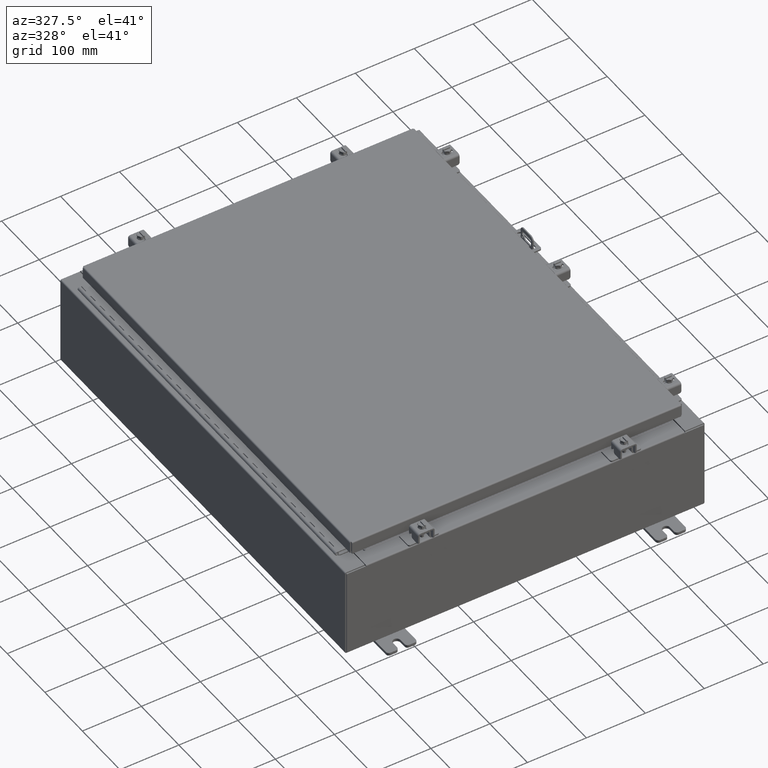
[diagram: clean part render]
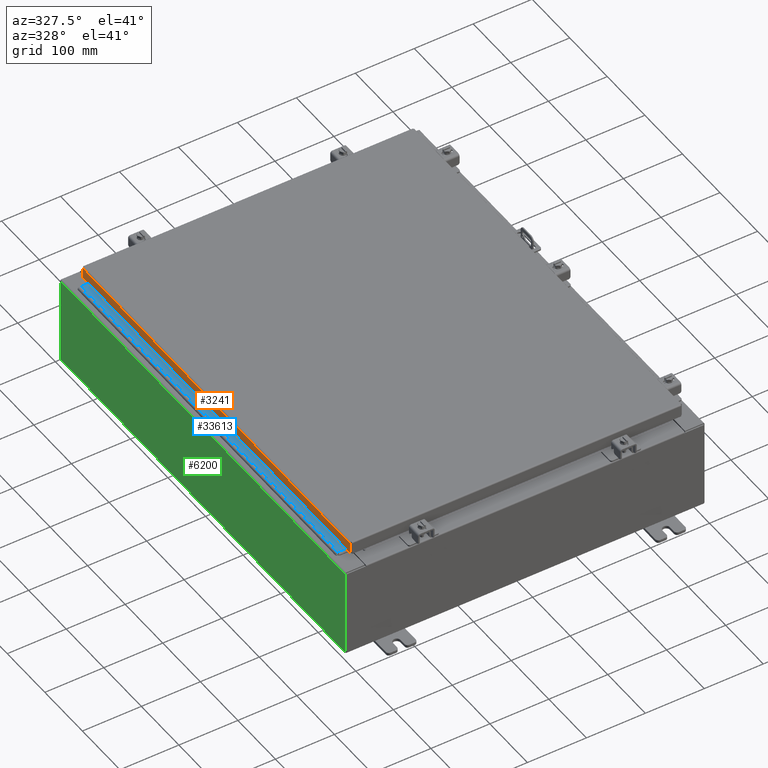
[diagram: same view with three faces highlighted in distinct colors, each labeled with its STEP entity id]
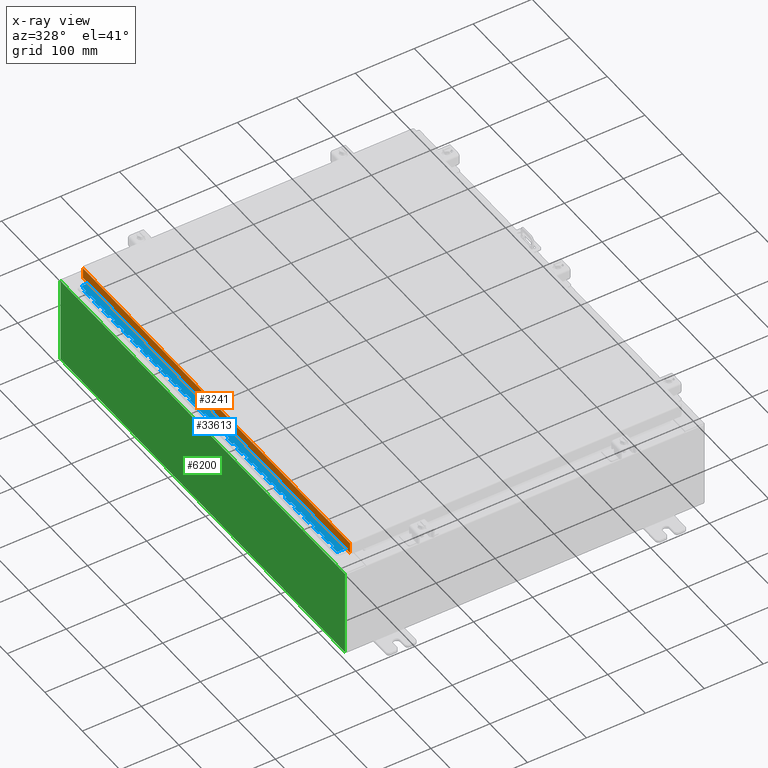
[diagram: x-ray of the same camera — body ghosted, the three highlighted faces saturated]
A machine part, auxiliary view with three faces highlighted in distinct colors.
The next image is the same camera in x-ray (body ghosted, the three faces saturated) — at least one of them is partly hidden behind the body in this view.
Their STEP definitions:

[orange] entity #3241 — the highlighted planar face has unit normal (1, 0, -0).
#792 = VECTOR ( 'NONE', #36221, 39.37007874015748100 ) ;
#1993 = VERTEX_POINT ( 'NONE', #17022 ) ;
#2592 = EDGE_CURVE ( 'NONE', #31426, #18394, #20271, .T. ) ;
#3241 = ADVANCED_FACE ( 'NONE', ( #8765 ), #7978, .F. ) ;
#3471 = VERTEX_POINT ( 'NONE', #20773 ) ;
#7978 = PLANE ( 'NONE',  #37780 ) ;
#8241 = CARTESIAN_POINT ( 'NONE',  ( -11.07799999999999900, -14.09399999999999600, -0.08770000000000004200 ) ) ;
#8765 = FACE_OUTER_BOUND ( 'NONE', #26725, .T. ) ;
#9571 = CARTESIAN_POINT ( 'NONE',  ( -11.07799999999999900, -14.00515786437626400, -0.08770000000000007000 ) ) ;
#9822 = EDGE_CURVE ( 'NONE', #18394, #1993, #16321, .T. ) ;
#11185 = DIRECTION ( 'NONE',  ( 3.675660434206577100E-031, -1.000000000000000000, -1.083515668565077200E-045 ) ) ;
#12814 = LINE ( 'NONE', #8241, #34372 ) ;
#13282 = LINE ( 'NONE', #23346, #35771 ) ;
#13870 = DIRECTION ( 'NONE',  ( -3.034122441942816500E-015, 0.0000000000000000000, -1.000000000000000000 ) ) ;
#13883 = DIRECTION ( 'NONE',  ( -3.034122441942816500E-015, 6.982962677686265900E-015, -1.000000000000000000 ) ) ;
#15419 = ORIENTED_EDGE ( 'NONE', *, *, #2592, .F. ) ;
#16321 = LINE ( 'NONE', #18655, #792 ) ;
#17022 = CARTESIAN_POINT ( 'NONE',  ( -11.07800000000000300, 14.00515786437627400, -0.7949999999999962700 ) ) ;
#18394 = VERTEX_POINT ( 'NONE', #35810 ) ;
#18655 = CARTESIAN_POINT ( 'NONE',  ( -11.07800000000000300, -14.09399999999999600, -0.7949999999999997100 ) ) ;
#18902 = ORIENTED_EDGE ( 'NONE', *, *, #21784, .F. ) ;
#20271 = LINE ( 'NONE', #31487, #22112 ) ;
#20684 = ORIENTED_EDGE ( 'NONE', *, *, #24850, .T. ) ;
#20773 = CARTESIAN_POINT ( 'NONE',  ( -11.07799999999999900, 14.00515786437626900, -0.08770000000000004200 ) ) ;
#21784 = EDGE_CURVE ( 'NONE', #3471, #31426, #12814, .T. ) ;
#22112 = VECTOR ( 'NONE', #13883, 39.37007874015748100 ) ;
#23346 = CARTESIAN_POINT ( 'NONE',  ( -11.07799999999999900, 14.00515786437626900, 1.316703167298978800E-013 ) ) ;
#24850 = EDGE_CURVE ( 'NONE', #3471, #1993, #13282, .T. ) ;
#26306 = DIRECTION ( 'NONE',  ( -3.034122441942816500E-015, 6.982962677686265900E-015, -1.000000000000000000 ) ) ;
#26725 = EDGE_LOOP ( 'NONE', ( #18902, #20684, #37130, #15419 ) ) ;
#28470 = CARTESIAN_POINT ( 'NONE',  ( -11.07799999999999900, -4.071896629014046000E-030, 3.387282206785410600E-014 ) ) ;
#31426 = VERTEX_POINT ( 'NONE', #9571 ) ;
#31475 = DIRECTION ( 'NONE',  ( 1.000000000000000000, 3.675660434206576600E-031, -3.034122441942816500E-015 ) ) ;
#31487 = CARTESIAN_POINT ( 'NONE',  ( -11.07799999999999900, -14.00515786437626500, -0.07469999999999976700 ) ) ;
#34372 = VECTOR ( 'NONE', #11185, 39.37007874015748100 ) ;
#35771 = VECTOR ( 'NONE', #26306, 39.37007874015748100 ) ;
#35810 = CARTESIAN_POINT ( 'NONE',  ( -11.07800000000000300, -14.00515786437626200, -0.7949999999999996000 ) ) ;
#36221 = DIRECTION ( 'NONE',  ( -4.379057701015054300E-047, 1.000000000000000000, 1.211441035930299800E-016 ) ) ;
#37130 = ORIENTED_EDGE ( 'NONE', *, *, #9822, .F. ) ;
#37780 = AXIS2_PLACEMENT_3D ( 'NONE', #28470, #31475, #13870 ) ;

[blue] entity #33613 — the highlighted planar face has unit normal (-0, -0, 1).
#75 = EDGE_CURVE ( 'NONE', #16488, #24640, #33822, .T. ) ;
#276 = DIRECTION ( 'NONE',  ( 3.389037039080723100E-015, 1.000000000000000000, -0.0000000000000000000 ) ) ;
#377 = DIRECTION ( 'NONE',  ( 0.0000000000000000000, 0.0000000000000000000, 1.000000000000000000 ) ) ;
#378 = EDGE_CURVE ( 'NONE', #37083, #36137, #25522, .T. ) ;
#435 = LINE ( 'NONE', #14942, #7248 ) ;
#448 = DIRECTION ( 'NONE',  ( 3.389037039080723100E-015, 1.000000000000000000, -0.0000000000000000000 ) ) ;
#564 = CARTESIAN_POINT ( 'NONE',  ( -0.6869999999999973900, 0.8004999999999995500, -10.00000000000000000 ) ) ;
#590 = LINE ( 'NONE', #18704, #29881 ) ;
#692 = LINE ( 'NONE', #6832, #31842 ) ;
#840 = VERTEX_POINT ( 'NONE', #14439 ) ;
#846 = ORIENTED_EDGE ( 'NONE', *, *, #22294, .F. ) ;
#854 = VECTOR ( 'NONE', #9577, 39.37007874015748100 ) ;
#922 = EDGE_CURVE ( 'NONE', #20458, #20285, #8973, .T. ) ;
#929 = DIRECTION ( 'NONE',  ( 0.0000000000000000000, -0.0000000000000000000, -1.000000000000000000 ) ) ;
#963 = CARTESIAN_POINT ( 'NONE',  ( -0.6869999999999973900, 0.8004999999999995500, -17.00000000000000000 ) ) ;
#989 = DIRECTION ( 'NONE',  ( 3.369016658928398200E-015, 1.000000000000000000, 0.0000000000000000000 ) ) ;
#1058 = CARTESIAN_POINT ( 'NONE',  ( -0.6869999999999978300, 0.6754999999999996600, -10.00000000000000000 ) ) ;
#1064 = VECTOR ( 'NONE', #8698, 39.37007874015748100 ) ;
#1069 = VECTOR ( 'NONE', #11442, 39.37007874015748100 ) ;
#1081 = ORIENTED_EDGE ( 'NONE', *, *, #6317, .F. ) ;
#1137 = CARTESIAN_POINT ( 'NONE',  ( -0.6869999999999973900, 0.8004999999999995500, -24.99999999999999600 ) ) ;
#1163 = LINE ( 'NONE', #37481, #15787 ) ;
#1209 = DIRECTION ( 'NONE',  ( 3.389037039080723100E-015, 1.000000000000000000, -0.0000000000000000000 ) ) ;
#1331 = LINE ( 'NONE', #30979, #25576 ) ;
#1553 = VERTEX_POINT ( 'NONE', #23364 ) ;
#1588 = CARTESIAN_POINT ( 'NONE',  ( -0.6869999999999978300, 0.6754999999999996600, -3.500000000000000000 ) ) ;
#1634 = VECTOR ( 'NONE', #22255, 39.37007874015748100 ) ;
#1736 = VERTEX_POINT ( 'NONE', #23929 ) ;
#1737 = CARTESIAN_POINT ( 'NONE',  ( -0.6869999999999978300, 0.6754999999999996600, -5.000000000000000000 ) ) ;
#1741 = CARTESIAN_POINT ( 'NONE',  ( -0.6869999999999982800, 0.5504999999999997700, -17.99999999999999600 ) ) ;
#1791 = LINE ( 'NONE', #33229, #32969 ) ;
#1815 = CARTESIAN_POINT ( 'NONE',  ( -0.6869999999999982800, 0.5504999999999997700, -13.50000000000000000 ) ) ;
#2019 = DIRECTION ( 'NONE',  ( 0.0000000000000000000, -0.0000000000000000000, -1.000000000000000000 ) ) ;
#2043 = LINE ( 'NONE', #28641, #37073 ) ;
#2059 = VERTEX_POINT ( 'NONE', #14312 ) ;
#2066 = CARTESIAN_POINT ( 'NONE',  ( -0.6869999999999973900, 0.8004999999999995500, -4.500000000000000000 ) ) ;
#2130 = DIRECTION ( 'NONE',  ( 3.389037039080723100E-015, 1.000000000000000000, -0.0000000000000000000 ) ) ;
#2207 = VECTOR ( 'NONE', #15123, 39.37007874015748100 ) ;
#2226 = ORIENTED_EDGE ( 'NONE', *, *, #27232, .T. ) ;
#2228 = VECTOR ( 'NONE', #16442, 39.37007874015748100 ) ;
#2237 = VECTOR ( 'NONE', #31300, 39.37007874015748100 ) ;
#2255 = LINE ( 'NONE', #35998, #9995 ) ;
#2285 = EDGE_CURVE ( 'NONE', #22846, #16200, #32299, .T. ) ;
#2313 = EDGE_CURVE ( 'NONE', #30670, #30271, #21671, .T. ) ;
#2347 = CARTESIAN_POINT ( 'NONE',  ( -0.6869999999999982800, 0.5504999999999997700, -20.50000000000000400 ) ) ;
#2363 = LINE ( 'NONE', #8206, #32624 ) ;
#2368 = CARTESIAN_POINT ( 'NONE',  ( -0.6869999999999973900, 0.8004999999999995500, -19.50000000000000000 ) ) ;
#2417 = CARTESIAN_POINT ( 'NONE',  ( -0.6869999999999973900, 0.8004999999999995500, -9.500000000000000000 ) ) ;
#2466 = ORIENTED_EDGE ( 'NONE', *, *, #27153, .T. ) ;
#2569 = CARTESIAN_POINT ( 'NONE',  ( -0.6869999999999998300, 0.07549999999999991400, 0.0000000000000000000 ) ) ;
#2596 = LINE ( 'NONE', #21977, #32857 ) ;
#2676 = DIRECTION ( 'NONE',  ( 0.0000000000000000000, -0.0000000000000000000, -1.000000000000000000 ) ) ;
#2748 = CARTESIAN_POINT ( 'NONE',  ( -0.6869999999999978300, 0.6754999999999996600, -11.00000000000000000 ) ) ;
#2777 = CARTESIAN_POINT ( 'NONE',  ( -0.6869999999999973900, 0.8004999999999995500, -11.50000000000000000 ) ) ;
#2852 = EDGE_CURVE ( 'NONE', #30791, #1553, #19806, .T. ) ;
#2878 = AXIS2_PLACEMENT_3D ( 'NONE', #34814, #14411, #34923 ) ;
#2952 = LINE ( 'NONE', #22965, #8849 ) ;
#2989 = VECTOR ( 'NONE', #2130, 39.37007874015748100 ) ;
#3033 = ORIENTED_EDGE ( 'NONE', *, *, #33767, .F. ) ;
#3062 = VECTOR ( 'NONE', #17940, 39.37007874015748100 ) ;
#3081 = EDGE_CURVE ( 'NONE', #12185, #19331, #13380, .T. ) ;
#3131 = EDGE_CURVE ( 'NONE', #20691, #17703, #27140, .T. ) ;
#3235 = DIRECTION ( 'NONE',  ( 0.0000000000000000000, -0.0000000000000000000, -1.000000000000000000 ) ) ;
#3260 = ORIENTED_EDGE ( 'NONE', *, *, #3131, .F. ) ;
#3265 = VECTOR ( 'NONE', #37590, 39.37007874015748100 ) ;
#3410 = CARTESIAN_POINT ( 'NONE',  ( -0.6869999999999978300, 0.6754999999999996600, -13.50000000000000000 ) ) ;
#3459 = CARTESIAN_POINT ( 'NONE',  ( -0.6869999999999978300, 0.6754999999999996600, -21.00000000000000000 ) ) ;
#3517 = CARTESIAN_POINT ( 'NONE',  ( -0.6869999999999982800, 0.5504999999999997700, -26.50000000000000400 ) ) ;
#3582 = VECTOR ( 'NONE', #20266, 39.37007874015748100 ) ;
#3592 = VECTOR ( 'NONE', #22303, 39.37007874015748100 ) ;
#3596 = DIRECTION ( 'NONE',  ( 0.0000000000000000000, 0.0000000000000000000, 1.000000000000000000 ) ) ;
#3620 = CARTESIAN_POINT ( 'NONE',  ( -0.6869999999999978300, 0.6754999999999996600, -14.49999999999999800 ) ) ;
#3621 = CARTESIAN_POINT ( 'NONE',  ( -0.6869999999999973900, 0.8004999999999995500, -12.99999999999999800 ) ) ;
#3663 = VECTOR ( 'NONE', #32852, 39.37007874015748100 ) ;
#3701 = DIRECTION ( 'NONE',  ( 0.0000000000000000000, -0.0000000000000000000, -1.000000000000000000 ) ) ;
#3716 = CARTESIAN_POINT ( 'NONE',  ( -0.6869999999999978300, 0.6754999999999996600, -27.00000000000000000 ) ) ;
#3803 = ORIENTED_EDGE ( 'NONE', *, *, #34931, .T. ) ;
#3833 = CARTESIAN_POINT ( 'NONE',  ( -0.6869999999999978300, 0.6754999999999996600, -11.99999999999999800 ) ) ;
#3874 = EDGE_CURVE ( 'NONE', #6614, #7145, #12873, .T. ) ;
#3899 = VERTEX_POINT ( 'NONE', #37567 ) ;
#3902 = DIRECTION ( 'NONE',  ( -3.389037039080723100E-015, -1.000000000000000000, 0.0000000000000000000 ) ) ;
#3949 = VECTOR ( 'NONE', #32716, 39.37007874015748100 ) ;
#4016 = CARTESIAN_POINT ( 'NONE',  ( -0.6869999999999982800, 0.5504999999999997700, -23.50000000000000000 ) ) ;
#4095 = DIRECTION ( 'NONE',  ( 3.389037039080723100E-015, 1.000000000000000000, -0.0000000000000000000 ) ) ;
#4110 = VERTEX_POINT ( 'NONE', #12282 ) ;
#4174 = ORIENTED_EDGE ( 'NONE', *, *, #29609, .F. ) ;
#4181 = VECTOR ( 'NONE', #34484, 39.37007874015748100 ) ;
#4231 = VECTOR ( 'NONE', #6549, 39.37007874015748100 ) ;
#4245 = CARTESIAN_POINT ( 'NONE',  ( -0.6869999999999973900, 0.8004999999999995500, -26.50000000000000400 ) ) ;
#4257 = VECTOR ( 'NONE', #23471, 39.37007874015748100 ) ;
#4260 = VERTEX_POINT ( 'NONE', #36124 ) ;
#4408 = VECTOR ( 'NONE', #21729, 39.37007874015748100 ) ;
#4446 = ORIENTED_EDGE ( 'NONE', *, *, #15635, .F. ) ;
#4506 = VERTEX_POINT ( 'NONE', #5670 ) ;
#4512 = CARTESIAN_POINT ( 'NONE',  ( -0.6869999999999982800, 0.5504999999999997700, -7.499999999999999100 ) ) ;
#4513 = EDGE_CURVE ( 'NONE', #4110, #8476, #28857, .T. ) ;
#4540 = ORIENTED_EDGE ( 'NONE', *, *, #2852, .F. ) ;
#4572 = CARTESIAN_POINT ( 'NONE',  ( -0.6869999999999978300, 0.6754999999999996600, -12.99999999999999800 ) ) ;
#4603 = VECTOR ( 'NONE', #27711, 39.37007874015748100 ) ;
#4653 = VECTOR ( 'NONE', #28759, 39.37007874015748100 ) ;
#4736 = DIRECTION ( 'NONE',  ( 0.0000000000000000000, -0.0000000000000000000, -1.000000000000000000 ) ) ;
#4783 = CARTESIAN_POINT ( 'NONE',  ( -0.6869999999999978300, 0.6754999999999996600, -27.00000000000000000 ) ) ;
#4997 = EDGE_CURVE ( 'NONE', #9150, #33953, #21036, .T. ) ;
#5028 = CARTESIAN_POINT ( 'NONE',  ( -0.6869999999999978300, 0.6754999999999996600, 0.0000000000000000000 ) ) ;
#5080 = VECTOR ( 'NONE', #28450, 39.37007874015748100 ) ;
#5115 = CARTESIAN_POINT ( 'NONE',  ( -0.6869999999999982800, 0.5504999999999997700, -20.00000000000000000 ) ) ;
#5223 = VECTOR ( 'NONE', #26384, 39.37007874015748100 ) ;
#5303 = EDGE_CURVE ( 'NONE', #23280, #30670, #2255, .T. ) ;
#5333 = LINE ( 'NONE', #28427, #37450 ) ;
#5356 = DIRECTION ( 'NONE',  ( -3.389037039080723100E-015, -1.000000000000000000, 0.0000000000000000000 ) ) ;
#5395 = VERTEX_POINT ( 'NONE', #18795 ) ;
#5450 = CARTESIAN_POINT ( 'NONE',  ( -0.6869999999999978300, 0.6754999999999996600, -27.00000000000000000 ) ) ;
#5457 = ORIENTED_EDGE ( 'NONE', *, *, #27411, .T. ) ;
#5476 = EDGE_CURVE ( 'NONE', #18251, #32914, #26963, .T. ) ;
#5478 = CARTESIAN_POINT ( 'NONE',  ( -0.6869999999999973900, 0.8004999999999995500, -17.50000000000000000 ) ) ;
#5650 = EDGE_CURVE ( 'NONE', #30437, #20362, #14560, .T. ) ;
#5670 = CARTESIAN_POINT ( 'NONE',  ( -0.6869999999999982800, 0.5504999999999997700, -14.99999999999999800 ) ) ;
#5678 = EDGE_CURVE ( 'NONE', #29896, #12250, #2043, .T. ) ;
#5784 = CARTESIAN_POINT ( 'NONE',  ( -0.6869999999999973900, 0.8004999999999995500, -10.50000000000000000 ) ) ;
#5790 = CARTESIAN_POINT ( 'NONE',  ( -0.6869999999999982800, 0.5504999999999997700, -23.00000000000000000 ) ) ;
#5800 = LINE ( 'NONE', #6732, #14498 ) ;
#5866 = LINE ( 'NONE', #10150, #7680 ) ;
#5905 = CARTESIAN_POINT ( 'NONE',  ( -0.6869999999999978300, 0.6754999999999996600, -27.00000000000000000 ) ) ;
#5978 = CARTESIAN_POINT ( 'NONE',  ( -0.6869999999999973900, 0.8004999999999995500, -20.00000000000000000 ) ) ;
#6031 = CARTESIAN_POINT ( 'NONE',  ( -0.6869999999999982800, 0.5504999999999997700, -8.000000000000000000 ) ) ;
#6041 = EDGE_LOOP ( 'NONE', ( #3260, #16866, #15551, #17142, #23871, #4540, #25056, #29963, #9386, #29330, #20241, #18165, #22313, #8687, #34911, #22857, #25344, #15605, #18721, #16821, #30499, #15782, #21068, #18861, #10338, #7652, #31650, #19777, #28862, #17104, #16060, #32955, #31557, #13485, #37792, #21487, #33996, #15383, #29662, #23325, #37227, #19665, #1081, #14654, #2226, #846, #6155, #20774, #5457, #15058, #27624, #36069, #37568, #7419, #4174, #15231, #29783, #31999, #36546, #35009, #36845, #35238, #37081, #33501, #12192, #30212, #32637, #9630, #36304, #14616, #17348, #12670, #2466, #34515, #12291, #13177, #23073, #3033, #9841, #26246, #33483, #11487, #34789, #34540, #26853, #32247, #34041, #34291, #27375, #29941, #18125, #32802, #13105, #33019, #18815, #27423, #3803, #26374, #31768, #18871, #34733, #4446, #14147, #17645, #9805, #11729, #25613, #15685, #11345, #19803 ) ) ;
#6056 = LINE ( 'NONE', #35384, #36322 ) ;
#6057 = VECTOR ( 'NONE', #4736, 39.37007874015748100 ) ;
#6079 = CARTESIAN_POINT ( 'NONE',  ( -0.6869999999999982800, 0.5504999999999997700, -4.500000000000000000 ) ) ;
#6089 = VERTEX_POINT ( 'NONE', #34691 ) ;
#6123 = VECTOR ( 'NONE', #30215, 39.37007874015748100 ) ;
#6155 = ORIENTED_EDGE ( 'NONE', *, *, #13762, .F. ) ;
#6270 = VERTEX_POINT ( 'NONE', #12099 ) ;
#6317 = EDGE_CURVE ( 'NONE', #37718, #20472, #29898, .T. ) ;
#6333 = VECTOR ( 'NONE', #24856, 39.37007874015748100 ) ;
#6359 = CARTESIAN_POINT ( 'NONE',  ( -0.6869999999999982800, 0.5504999999999997700, -16.50000000000000000 ) ) ;
#6427 = DIRECTION ( 'NONE',  ( 0.0000000000000000000, -0.0000000000000000000, -1.000000000000000000 ) ) ;
#6468 = CARTESIAN_POINT ( 'NONE',  ( -0.6869999999999973900, 0.8004999999999995500, -7.499999999999999100 ) ) ;
#6472 = CARTESIAN_POINT ( 'NONE',  ( -0.6869999999999982800, 0.5504999999999997700, -25.50000000000000400 ) ) ;
#6549 = DIRECTION ( 'NONE',  ( 3.389037039080723100E-015, 1.000000000000000000, -0.0000000000000000000 ) ) ;
#6574 = VERTEX_POINT ( 'NONE', #25263 ) ;
#6614 = VERTEX_POINT ( 'NONE', #13732 ) ;
#6658 = CARTESIAN_POINT ( 'NONE',  ( -0.6869999999999978300, 0.6754999999999996600, -14.00000000000000000 ) ) ;
#6732 = CARTESIAN_POINT ( 'NONE',  ( -0.6869999999999973900, 0.8004999999999995500, -8.000000000000000000 ) ) ;
#6758 = VERTEX_POINT ( 'NONE', #2748 ) ;
#6788 = VECTOR ( 'NONE', #11085, 39.37007874015748100 ) ;
#6813 = DIRECTION ( 'NONE',  ( 0.0000000000000000000, -0.0000000000000000000, -1.000000000000000000 ) ) ;
#6832 = CARTESIAN_POINT ( 'NONE',  ( -0.6869999999999973900, 0.8004999999999995500, -23.50000000000000000 ) ) ;
#6987 = EDGE_CURVE ( 'NONE', #4506, #23968, #30313, .T. ) ;
#7001 = CARTESIAN_POINT ( 'NONE',  ( -0.6869999999999982800, 0.5504999999999997700, -24.99999999999999600 ) ) ;
#7049 = LINE ( 'NONE', #6079, #28573 ) ;
#7145 = VERTEX_POINT ( 'NONE', #28283 ) ;
#7248 = VECTOR ( 'NONE', #32535, 39.37007874015748100 ) ;
#7262 = EDGE_CURVE ( 'NONE', #15660, #1553, #27949, .T. ) ;
#7312 = VERTEX_POINT ( 'NONE', #1741 ) ;
#7419 = ORIENTED_EDGE ( 'NONE', *, *, #28056, .F. ) ;
#7459 = LINE ( 'NONE', #11902, #36841 ) ;
#7519 = VECTOR ( 'NONE', #27676, 39.37007874015748100 ) ;
#7545 = CARTESIAN_POINT ( 'NONE',  ( -0.6869999999999973900, 0.8004999999999995500, -11.99999999999999800 ) ) ;
#7562 = VERTEX_POINT ( 'NONE', #5790 ) ;
#7629 = VERTEX_POINT ( 'NONE', #11915 ) ;
#7652 = ORIENTED_EDGE ( 'NONE', *, *, #23691, .F. ) ;
#7680 = VECTOR ( 'NONE', #30669, 39.37007874015748100 ) ;
#7701 = CARTESIAN_POINT ( 'NONE',  ( -0.6869999999999978300, 0.6754999999999996600, -16.50000000000000000 ) ) ;
#7718 = EDGE_CURVE ( 'NONE', #26061, #19319, #11413, .T. ) ;
#7772 = EDGE_CURVE ( 'NONE', #20472, #12250, #25156, .T. ) ;
#7913 = DIRECTION ( 'NONE',  ( 0.0000000000000000000, 0.0000000000000000000, 1.000000000000000000 ) ) ;
#7947 = LINE ( 'NONE', #26038, #25358 ) ;
#7995 = VECTOR ( 'NONE', #377, 39.37007874015748100 ) ;
#8027 = LINE ( 'NONE', #17639, #26376 ) ;
#8033 = CARTESIAN_POINT ( 'NONE',  ( -0.6869999999999982800, 0.5504999999999997700, -11.99999999999999800 ) ) ;
#8063 = VECTOR ( 'NONE', #276, 39.37007874015748100 ) ;
#8081 = CARTESIAN_POINT ( 'NONE',  ( -0.6869999999999982800, 0.5504999999999997700, -26.50000000000000400 ) ) ;
#8206 = CARTESIAN_POINT ( 'NONE',  ( -0.6869999999999973900, 0.8004999999999995500, -2.500000000000000000 ) ) ;
#8279 = CARTESIAN_POINT ( 'NONE',  ( -0.6869999999999982800, 0.5504999999999997700, -11.50000000000000000 ) ) ;
#8312 = VECTOR ( 'NONE', #21496, 39.37007874015748100 ) ;
#8432 = DIRECTION ( 'NONE',  ( 0.0000000000000000000, 0.0000000000000000000, 1.000000000000000000 ) ) ;
#8457 = DIRECTION ( 'NONE',  ( -3.389037039080723100E-015, -1.000000000000000000, 0.0000000000000000000 ) ) ;
#8476 = VERTEX_POINT ( 'NONE', #7001 ) ;
#8572 = EDGE_CURVE ( 'NONE', #1736, #20458, #1331, .T. ) ;
#8645 = EDGE_CURVE ( 'NONE', #27007, #9271, #30635, .T. ) ;
#8647 = CARTESIAN_POINT ( 'NONE',  ( -0.6869999999999982800, 0.5504999999999997700, -14.49999999999999800 ) ) ;
#8687 = ORIENTED_EDGE ( 'NONE', *, *, #26231, .F. ) ;
#8698 = DIRECTION ( 'NONE',  ( -3.389037039080723100E-015, -1.000000000000000000, 0.0000000000000000000 ) ) ;
#8701 = EDGE_CURVE ( 'NONE', #6574, #35121, #19138, .T. ) ;
#8742 = LINE ( 'NONE', #2368, #24338 ) ;
#8849 = VECTOR ( 'NONE', #31861, 39.37007874015748100 ) ;
#8973 = LINE ( 'NONE', #12002, #8063 ) ;
#9005 = CARTESIAN_POINT ( 'NONE',  ( -0.6869999999999978300, 0.6754999999999996600, -27.00000000000000000 ) ) ;
#9031 = CARTESIAN_POINT ( 'NONE',  ( -0.6869999999999978300, 0.6754999999999996600, -27.00000000000000000 ) ) ;
#9084 = CARTESIAN_POINT ( 'NONE',  ( -0.6869999999999978300, 0.6754999999999996600, -7.000000000000000000 ) ) ;
#9087 = EDGE_CURVE ( 'NONE', #16488, #6758, #25529, .T. ) ;
#9150 = VERTEX_POINT ( 'NONE', #3620 ) ;
#9177 = CARTESIAN_POINT ( 'NONE',  ( -0.6869999999999978300, 0.6754999999999996600, -19.50000000000000000 ) ) ;
#9242 = LINE ( 'NONE', #15612, #8312 ) ;
#9267 = DIRECTION ( 'NONE',  ( 0.0000000000000000000, 0.0000000000000000000, 1.000000000000000000 ) ) ;
#9271 = VERTEX_POINT ( 'NONE', #10093 ) ;
#9293 = VECTOR ( 'NONE', #26642, 39.37007874015748100 ) ;
#9386 = ORIENTED_EDGE ( 'NONE', *, *, #15020, .T. ) ;
#9446 = EDGE_CURVE ( 'NONE', #9150, #13128, #13580, .T. ) ;
#9468 = EDGE_CURVE ( 'NONE', #34764, #25277, #20445, .T. ) ;
#9570 = VECTOR ( 'NONE', #989, 39.37007874015748100 ) ;
#9577 = DIRECTION ( 'NONE',  ( -3.389037039080723100E-015, -1.000000000000000000, 0.0000000000000000000 ) ) ;
#9629 = CARTESIAN_POINT ( 'NONE',  ( -0.6869999999999982800, 0.5504999999999997700, -2.999999999999999600 ) ) ;
#9630 = ORIENTED_EDGE ( 'NONE', *, *, #23624, .F. ) ;
#9680 = CARTESIAN_POINT ( 'NONE',  ( -0.6869999999999973900, 0.8004999999999995500, -9.000000000000000000 ) ) ;
#9719 = VERTEX_POINT ( 'NONE', #9177 ) ;
#9786 = VECTOR ( 'NONE', #18410, 39.37007874015748100 ) ;
#9805 = ORIENTED_EDGE ( 'NONE', *, *, #13226, .T. ) ;
#9841 = ORIENTED_EDGE ( 'NONE', *, *, #33599, .F. ) ;
#9938 = VECTOR ( 'NONE', #32849, 39.37007874015748100 ) ;
#9973 = EDGE_CURVE ( 'NONE', #35121, #20026, #26390, .T. ) ;
#9995 = VECTOR ( 'NONE', #929, 39.37007874015748100 ) ;
#10093 = CARTESIAN_POINT ( 'NONE',  ( -0.6869999999999982800, 0.5504999999999997700, -5.500000000000000000 ) ) ;
#10150 = CARTESIAN_POINT ( 'NONE',  ( -0.6869999999999978300, 0.6754999999999996600, -27.00000000000000000 ) ) ;
#10202 = CARTESIAN_POINT ( 'NONE',  ( -0.6869999999999973900, 0.8004999999999995500, -25.50000000000000400 ) ) ;
#10251 = CARTESIAN_POINT ( 'NONE',  ( -0.6869999999999973900, 0.8004999999999995500, -19.00000000000000000 ) ) ;
#10273 = CARTESIAN_POINT ( 'NONE',  ( -0.6869999999999973900, 0.8004999999999995500, -5.500000000000000000 ) ) ;
#10299 = LINE ( 'NONE', #10599, #1634 ) ;
#10338 = ORIENTED_EDGE ( 'NONE', *, *, #2285, .T. ) ;
#10343 = DIRECTION ( 'NONE',  ( 0.0000000000000000000, 0.0000000000000000000, 1.000000000000000000 ) ) ;
#10510 = DIRECTION ( 'NONE',  ( 0.0000000000000000000, 0.0000000000000000000, 1.000000000000000000 ) ) ;
#10525 = CARTESIAN_POINT ( 'NONE',  ( -0.6869999999999973900, 0.8004999999999995500, -1.499999999999999800 ) ) ;
#10562 = DIRECTION ( 'NONE',  ( 0.0000000000000000000, 0.0000000000000000000, 1.000000000000000000 ) ) ;
#10599 = CARTESIAN_POINT ( 'NONE',  ( -0.6869999999999978300, 0.6754999999999996600, -27.00000000000000000 ) ) ;
#10608 = VERTEX_POINT ( 'NONE', #3517 ) ;
#10699 = CARTESIAN_POINT ( 'NONE',  ( -0.6869999999999978300, 0.6754999999999996600, -24.50000000000000000 ) ) ;
#10733 = EDGE_CURVE ( 'NONE', #12123, #3899, #23103, .T. ) ;
#10769 = CARTESIAN_POINT ( 'NONE',  ( -0.6869999999999982800, 0.5504999999999997700, -4.500000000000000000 ) ) ;
#10901 = CARTESIAN_POINT ( 'NONE',  ( -0.6869999999999973900, 0.8004999999999995500, -21.50000000000000400 ) ) ;
#10902 = CARTESIAN_POINT ( 'NONE',  ( -0.6869999999999982800, 0.5504999999999997700, -17.00000000000000000 ) ) ;
#11036 = DIRECTION ( 'NONE',  ( 3.389037039080723100E-015, 1.000000000000000000, -0.0000000000000000000 ) ) ;
#11046 = EDGE_CURVE ( 'NONE', #33924, #34973, #13003, .T. ) ;
#11059 = CARTESIAN_POINT ( 'NONE',  ( -0.6869999999999978300, 0.6754999999999996600, -16.00000000000000000 ) ) ;
#11062 = LINE ( 'NONE', #24076, #4231 ) ;
#11068 = EDGE_CURVE ( 'NONE', #25174, #15735, #36412, .T. ) ;
#11085 = DIRECTION ( 'NONE',  ( 3.389037039080723100E-015, 1.000000000000000000, -0.0000000000000000000 ) ) ;
#11218 = VERTEX_POINT ( 'NONE', #29978 ) ;
#11317 = VERTEX_POINT ( 'NONE', #1058 ) ;
#11345 = ORIENTED_EDGE ( 'NONE', *, *, #15139, .T. ) ;
#11358 = VECTOR ( 'NONE', #30856, 39.37007874015748100 ) ;
#11413 = LINE ( 'NONE', #29876, #3663 ) ;
#11442 = DIRECTION ( 'NONE',  ( 0.0000000000000000000, 0.0000000000000000000, 1.000000000000000000 ) ) ;
#11487 = ORIENTED_EDGE ( 'NONE', *, *, #378, .F. ) ;
#11513 = CARTESIAN_POINT ( 'NONE',  ( -0.6869999999999978300, 0.6754999999999996600, -4.000000000000000000 ) ) ;
#11542 = EDGE_CURVE ( 'NONE', #8476, #16706, #29069, .T. ) ;
#11592 = DIRECTION ( 'NONE',  ( 0.0000000000000000000, -0.0000000000000000000, -1.000000000000000000 ) ) ;
#11624 = EDGE_CURVE ( 'NONE', #37137, #36792, #27243, .T. ) ;
#11633 = VECTOR ( 'NONE', #24759, 39.37007874015748100 ) ;
#11698 = LINE ( 'NONE', #564, #3949 ) ;
#11727 = LINE ( 'NONE', #26764, #3062 ) ;
#11729 = ORIENTED_EDGE ( 'NONE', *, *, #922, .F. ) ;
#11818 = CARTESIAN_POINT ( 'NONE',  ( -0.6869999999999973900, 0.8004999999999995500, -26.00000000000000000 ) ) ;
#11823 = VERTEX_POINT ( 'NONE', #25658 ) ;
#11874 = EDGE_CURVE ( 'NONE', #14051, #12185, #28584, .T. ) ;
#11902 = CARTESIAN_POINT ( 'NONE',  ( -0.6869999999999982800, 0.5504999999999997700, -10.50000000000000000 ) ) ;
#11915 = CARTESIAN_POINT ( 'NONE',  ( -0.6869999999999978300, 0.6754999999999996600, -18.50000000000000000 ) ) ;
#11955 = LINE ( 'NONE', #35252, #35367 ) ;
#11988 = LINE ( 'NONE', #23944, #34478 ) ;
#12002 = CARTESIAN_POINT ( 'NONE',  ( -0.6869999999999973900, 0.8004999999999995500, -1.000000000000000000 ) ) ;
#12038 = VECTOR ( 'NONE', #26391, 39.37007874015748100 ) ;
#12087 = VERTEX_POINT ( 'NONE', #17981 ) ;
#12099 = CARTESIAN_POINT ( 'NONE',  ( -0.6869999999999978300, 0.6754999999999996600, -15.50000000000000000 ) ) ;
#12123 = VERTEX_POINT ( 'NONE', #26943 ) ;
#12157 = LINE ( 'NONE', #13160, #19014 ) ;
#12179 = CARTESIAN_POINT ( 'NONE',  ( -0.6869999999999978300, 0.6754999999999996600, -27.00000000000000000 ) ) ;
#12185 = VERTEX_POINT ( 'NONE', #9629 ) ;
#12192 = ORIENTED_EDGE ( 'NONE', *, *, #9087, .T. ) ;
#12226 = VERTEX_POINT ( 'NONE', #4016 ) ;
#12250 = VERTEX_POINT ( 'NONE', #36295 ) ;
#12282 = CARTESIAN_POINT ( 'NONE',  ( -0.6869999999999982800, 0.5504999999999997700, -24.50000000000000000 ) ) ;
#12291 = ORIENTED_EDGE ( 'NONE', *, *, #5303, .F. ) ;
#12295 = VECTOR ( 'NONE', #15302, 39.37007874015748100 ) ;
#12379 = CARTESIAN_POINT ( 'NONE',  ( -0.6869999999999982800, 0.5504999999999997700, -17.50000000000000000 ) ) ;
#12395 = VERTEX_POINT ( 'NONE', #4512 ) ;
#12581 = EDGE_CURVE ( 'NONE', #9271, #32257, #16262, .T. ) ;
#12627 = LINE ( 'NONE', #17302, #19484 ) ;
#12670 = ORIENTED_EDGE ( 'NONE', *, *, #19815, .F. ) ;
#12685 = VECTOR ( 'NONE', #37300, 39.37007874015748100 ) ;
#12721 = CARTESIAN_POINT ( 'NONE',  ( -0.6869999999999982800, 0.5504999999999997700, -9.000000000000000000 ) ) ;
#12753 = CARTESIAN_POINT ( 'NONE',  ( -0.6869999999999982800, 0.5504999999999997700, -1.499999999999999800 ) ) ;
#12779 = LINE ( 'NONE', #31182, #28337 ) ;
#12789 = CARTESIAN_POINT ( 'NONE',  ( -0.6869999999999978300, 0.6754999999999996600, -6.000000000000000900 ) ) ;
#12807 = CARTESIAN_POINT ( 'NONE',  ( -0.6869999999999982800, 0.5504999999999997700, -16.00000000000000000 ) ) ;
#12817 = CARTESIAN_POINT ( 'NONE',  ( -0.6869999999999973900, 0.8004999999999995500, -14.99999999999999800 ) ) ;
#12840 = CARTESIAN_POINT ( 'NONE',  ( -0.6869999999999978300, 0.6754999999999996600, -23.00000000000000000 ) ) ;
#12873 = LINE ( 'NONE', #2347, #4181 ) ;
#12918 = VECTOR ( 'NONE', #448, 39.37007874015748100 ) ;
#12931 = EDGE_CURVE ( 'NONE', #34616, #35536, #12627, .T. ) ;
#12993 = DIRECTION ( 'NONE',  ( 3.389037039080723100E-015, 1.000000000000000000, -0.0000000000000000000 ) ) ;
#13003 = LINE ( 'NONE', #37940, #5223 ) ;
#13100 = CARTESIAN_POINT ( 'NONE',  ( -0.6869999999999978300, 0.6754999999999996600, -1.000000000000000000 ) ) ;
#13101 = LINE ( 'NONE', #24549, #27769 ) ;
#13105 = ORIENTED_EDGE ( 'NONE', *, *, #27351, .T. ) ;
#13128 = VERTEX_POINT ( 'NONE', #6658 ) ;
#13160 = CARTESIAN_POINT ( 'NONE',  ( -0.6869999999999973900, 0.8004999999999995500, -15.50000000000000000 ) ) ;
#13177 = ORIENTED_EDGE ( 'NONE', *, *, #34776, .F. ) ;
#13226 = EDGE_CURVE ( 'NONE', #6574, #20285, #10299, .T. ) ;
#13254 = CARTESIAN_POINT ( 'NONE',  ( -0.6869999999999982800, 0.5504999999999997700, -10.00000000000000000 ) ) ;
#13350 = LINE ( 'NONE', #2417, #4653 ) ;
#13380 = LINE ( 'NONE', #27600, #20239 ) ;
#13459 = CARTESIAN_POINT ( 'NONE',  ( -0.6869999999999978300, 0.6754999999999996600, -2.500000000000000000 ) ) ;
#13473 = EDGE_CURVE ( 'NONE', #35704, #1736, #31407, .T. ) ;
#13485 = ORIENTED_EDGE ( 'NONE', *, *, #10733, .F. ) ;
#13505 = DIRECTION ( 'NONE',  ( 0.0000000000000000000, -0.0000000000000000000, -1.000000000000000000 ) ) ;
#13580 = LINE ( 'NONE', #25460, #29172 ) ;
#13583 = DIRECTION ( 'NONE',  ( 3.389037039080723100E-015, 1.000000000000000000, -0.0000000000000000000 ) ) ;
#13645 = CARTESIAN_POINT ( 'NONE',  ( -0.6869999999999978300, 0.6754999999999996600, -11.50000000000000000 ) ) ;
#13659 = CARTESIAN_POINT ( 'NONE',  ( -0.6869999999999982800, 0.5504999999999997700, -10.50000000000000000 ) ) ;
#13699 = CARTESIAN_POINT ( 'NONE',  ( -0.6869999999999973900, 0.8004999999999995500, -12.49999999999999800 ) ) ;
#13732 = CARTESIAN_POINT ( 'NONE',  ( -0.6869999999999982800, 0.5504999999999997700, -20.50000000000000400 ) ) ;
#13762 = EDGE_CURVE ( 'NONE', #17511, #20924, #29996, .T. ) ;
#13823 = LINE ( 'NONE', #35517, #12918 ) ;
#13923 = EDGE_CURVE ( 'NONE', #23446, #36137, #2952, .T. ) ;
#13960 = CARTESIAN_POINT ( 'NONE',  ( -0.6869999999999973900, 0.8004999999999995500, -14.49999999999999800 ) ) ;
#13985 = EDGE_CURVE ( 'NONE', #18923, #37083, #7947, .T. ) ;
#13987 = VECTOR ( 'NONE', #17770, 39.37007874015748100 ) ;
#14031 = LINE ( 'NONE', #13699, #28691 ) ;
#14051 = VERTEX_POINT ( 'NONE', #32369 ) ;
#14147 = ORIENTED_EDGE ( 'NONE', *, *, #9973, .F. ) ;
#14247 = VERTEX_POINT ( 'NONE', #31283 ) ;
#14292 = VECTOR ( 'NONE', #15186, 39.37007874015748100 ) ;
#14301 = LINE ( 'NONE', #5478, #15242 ) ;
#14312 = CARTESIAN_POINT ( 'NONE',  ( -0.6869999999999978300, 0.6754999999999996600, -10.50000000000000000 ) ) ;
#14331 = VERTEX_POINT ( 'NONE', #5115 ) ;
#14411 = DIRECTION ( 'NONE',  ( 1.000000000000000000, -3.369016658928398200E-015, 0.0000000000000000000 ) ) ;
#14439 = CARTESIAN_POINT ( 'NONE',  ( -0.6869999999999982800, 0.5504999999999997700, -12.99999999999999800 ) ) ;
#14498 = VECTOR ( 'NONE', #27212, 39.37007874015748100 ) ;
#14503 = CARTESIAN_POINT ( 'NONE',  ( -0.6869999999999982800, 0.5504999999999997700, -24.50000000000000000 ) ) ;
#14535 = CARTESIAN_POINT ( 'NONE',  ( -0.6869999999999978300, 0.6754999999999996600, -24.99999999999999600 ) ) ;
#14560 = LINE ( 'NONE', #37402, #6788 ) ;
#14562 = CARTESIAN_POINT ( 'NONE',  ( -0.6869999999999973900, 0.8004999999999995500, -0.5000000000000000000 ) ) ;
#14599 = LINE ( 'NONE', #25829, #20542 ) ;
#14616 = ORIENTED_EDGE ( 'NONE', *, *, #34303, .F. ) ;
#14654 = ORIENTED_EDGE ( 'NONE', *, *, #32911, .F. ) ;
#14782 = CARTESIAN_POINT ( 'NONE',  ( -0.6869999999999978300, 0.6754999999999996600, -27.00000000000000000 ) ) ;
#14828 = VERTEX_POINT ( 'NONE', #22216 ) ;
#14852 = CARTESIAN_POINT ( 'NONE',  ( -0.6869999999999973900, 0.8004999999999995500, -18.50000000000000000 ) ) ;
#14859 = DIRECTION ( 'NONE',  ( 0.0000000000000000000, -0.0000000000000000000, -1.000000000000000000 ) ) ;
#14901 = DIRECTION ( 'NONE',  ( 0.0000000000000000000, -0.0000000000000000000, -1.000000000000000000 ) ) ;
#14921 = CARTESIAN_POINT ( 'NONE',  ( -0.6869999999999982800, 0.5504999999999997700, -2.000000000000000000 ) ) ;
#14942 = CARTESIAN_POINT ( 'NONE',  ( -0.6869999999999973900, 0.8004999999999995500, -6.000000000000000900 ) ) ;
#14994 = CARTESIAN_POINT ( 'NONE',  ( -0.6869999999999982800, 0.5504999999999997700, -6.499999999999999100 ) ) ;
#15020 = EDGE_CURVE ( 'NONE', #18251, #16706, #32223, .T. ) ;
#15058 = ORIENTED_EDGE ( 'NONE', *, *, #6987, .F. ) ;
#15123 = DIRECTION ( 'NONE',  ( 0.0000000000000000000, 0.0000000000000000000, 1.000000000000000000 ) ) ;
#15139 = EDGE_CURVE ( 'NONE', #35704, #15500, #28502, .T. ) ;
#15166 = VECTOR ( 'NONE', #35724, 39.37007874015748100 ) ;
#15174 = CARTESIAN_POINT ( 'NONE',  ( -0.6869999999999978300, 0.6754999999999996600, -23.99999999999999600 ) ) ;
#15186 = DIRECTION ( 'NONE',  ( 0.0000000000000000000, -0.0000000000000000000, -1.000000000000000000 ) ) ;
#15190 = CARTESIAN_POINT ( 'NONE',  ( -0.6869999999999982800, 0.5504999999999997700, -3.500000000000000000 ) ) ;
#15202 = EDGE_CURVE ( 'NONE', #23446, #12395, #34486, .T. ) ;
#15231 = ORIENTED_EDGE ( 'NONE', *, *, #11624, .F. ) ;
#15242 = VECTOR ( 'NONE', #37660, 39.37007874015748100 ) ;
#15286 = VECTOR ( 'NONE', #10510, 39.37007874015748100 ) ;
#15302 = DIRECTION ( 'NONE',  ( 0.0000000000000000000, 0.0000000000000000000, 1.000000000000000000 ) ) ;
#15341 = CARTESIAN_POINT ( 'NONE',  ( -0.6869999999999982800, 0.5504999999999997700, -22.50000000000000000 ) ) ;
#15383 = ORIENTED_EDGE ( 'NONE', *, *, #29680, .F. ) ;
#15500 = VERTEX_POINT ( 'NONE', #5028 ) ;
#15512 = EDGE_CURVE ( 'NONE', #9719, #6089, #8742, .T. ) ;
#15551 = ORIENTED_EDGE ( 'NONE', *, *, #23504, .F. ) ;
#15605 = ORIENTED_EDGE ( 'NONE', *, *, #23758, .F. ) ;
#15612 = CARTESIAN_POINT ( 'NONE',  ( -0.6869999999999982800, 0.5504999999999997700, -18.50000000000000000 ) ) ;
#15635 = EDGE_CURVE ( 'NONE', #20026, #14247, #11955, .T. ) ;
#15660 = VERTEX_POINT ( 'NONE', #26527 ) ;
#15685 = ORIENTED_EDGE ( 'NONE', *, *, #13473, .F. ) ;
#15735 = VERTEX_POINT ( 'NONE', #21009 ) ;
#15782 = ORIENTED_EDGE ( 'NONE', *, *, #27345, .F. ) ;
#15783 = VECTOR ( 'NONE', #20562, 39.37007874015748100 ) ;
#15787 = VECTOR ( 'NONE', #11036, 39.37007874015748100 ) ;
#15798 = LINE ( 'NONE', #9031, #7995 ) ;
#15830 = LINE ( 'NONE', #5978, #13987 ) ;
#15858 = EDGE_CURVE ( 'NONE', #17651, #34408, #32468, .T. ) ;
#15939 = CARTESIAN_POINT ( 'NONE',  ( -0.6869999999999978300, 0.6754999999999996600, -27.00000000000000000 ) ) ;
#15944 = VECTOR ( 'NONE', #28734, 39.37007874015748100 ) ;
#16060 = ORIENTED_EDGE ( 'NONE', *, *, #32723, .F. ) ;
#16200 = VERTEX_POINT ( 'NONE', #3459 ) ;
#16201 = CARTESIAN_POINT ( 'NONE',  ( -0.6869999999999998300, 0.07549999999999991400, -27.00000000000000000 ) ) ;
#16242 = DIRECTION ( 'NONE',  ( -3.389037039080723100E-015, -1.000000000000000000, 0.0000000000000000000 ) ) ;
#16262 = LINE ( 'NONE', #23685, #31884 ) ;
#16400 = DIRECTION ( 'NONE',  ( 3.389037039080723100E-015, 1.000000000000000000, -0.0000000000000000000 ) ) ;
#16442 = DIRECTION ( 'NONE',  ( 0.0000000000000000000, -0.0000000000000000000, -1.000000000000000000 ) ) ;
#16488 = VERTEX_POINT ( 'NONE', #13645 ) ;
#16502 = CARTESIAN_POINT ( 'NONE',  ( -0.6869999999999978300, 0.6754999999999996600, -20.50000000000000400 ) ) ;
#16589 = CARTESIAN_POINT ( 'NONE',  ( -0.6869999999999978300, 0.6754999999999996600, -21.50000000000000400 ) ) ;
#16602 = CARTESIAN_POINT ( 'NONE',  ( -0.6869999999999982800, 0.5504999999999997700, -1.499999999999999800 ) ) ;
#16675 = DIRECTION ( 'NONE',  ( -3.389037039080723100E-015, -1.000000000000000000, 0.0000000000000000000 ) ) ;
#16706 = VERTEX_POINT ( 'NONE', #14535 ) ;
#16776 = CARTESIAN_POINT ( 'NONE',  ( -0.6869999999999973900, 0.8004999999999995500, -17.99999999999999600 ) ) ;
#16821 = ORIENTED_EDGE ( 'NONE', *, *, #11068, .F. ) ;
#16823 = VECTOR ( 'NONE', #21750, 39.37007874015748100 ) ;
#16856 = VECTOR ( 'NONE', #37094, 39.37007874015748100 ) ;
#16866 = ORIENTED_EDGE ( 'NONE', *, *, #36756, .T. ) ;
#16911 = DIRECTION ( 'NONE',  ( -3.389037039080723100E-015, -1.000000000000000000, 0.0000000000000000000 ) ) ;
#16998 = LINE ( 'NONE', #5784, #1064 ) ;
#16999 = DIRECTION ( 'NONE',  ( 0.0000000000000000000, 0.0000000000000000000, 1.000000000000000000 ) ) ;
#17091 = LINE ( 'NONE', #14852, #9293 ) ;
#17094 = CARTESIAN_POINT ( 'NONE',  ( -0.6869999999999982800, 0.5504999999999997700, -2.500000000000000000 ) ) ;
#17104 = ORIENTED_EDGE ( 'NONE', *, *, #27678, .F. ) ;
#17142 = ORIENTED_EDGE ( 'NONE', *, *, #37981, .F. ) ;
#17175 = VERTEX_POINT ( 'NONE', #32194 ) ;
#17262 = VERTEX_POINT ( 'NONE', #6031 ) ;
#17301 = CARTESIAN_POINT ( 'NONE',  ( -0.6869999999999978300, 0.6754999999999996600, -5.500000000000000000 ) ) ;
#17302 = CARTESIAN_POINT ( 'NONE',  ( -0.6869999999999978300, 0.6754999999999996600, -27.00000000000000000 ) ) ;
#17348 = ORIENTED_EDGE ( 'NONE', *, *, #37431, .F. ) ;
#17359 = CARTESIAN_POINT ( 'NONE',  ( -0.6869999999999982800, 0.5504999999999997700, -5.000000000000000000 ) ) ;
#17511 = VERTEX_POINT ( 'NONE', #19178 ) ;
#17595 = VECTOR ( 'NONE', #35296, 39.37007874015748100 ) ;
#17639 = CARTESIAN_POINT ( 'NONE',  ( -0.6869999999999978300, 0.6754999999999996600, -27.00000000000000000 ) ) ;
#17645 = ORIENTED_EDGE ( 'NONE', *, *, #8701, .F. ) ;
#17651 = VERTEX_POINT ( 'NONE', #8033 ) ;
#17700 = VECTOR ( 'NONE', #2019, 39.37007874015748100 ) ;
#17703 = VERTEX_POINT ( 'NONE', #2569 ) ;
#17705 = DIRECTION ( 'NONE',  ( 3.389037039080723100E-015, 1.000000000000000000, -0.0000000000000000000 ) ) ;
#17770 = DIRECTION ( 'NONE',  ( 3.389037039080723100E-015, 1.000000000000000000, -0.0000000000000000000 ) ) ;
#17781 = EDGE_CURVE ( 'NONE', #33953, #4506, #21746, .T. ) ;
#17787 = LINE ( 'NONE', #25254, #2228 ) ;
#17940 = DIRECTION ( 'NONE',  ( 0.0000000000000000000, 0.0000000000000000000, 1.000000000000000000 ) ) ;
#17981 = CARTESIAN_POINT ( 'NONE',  ( -0.6869999999999982800, 0.5504999999999997700, -27.00000000000000000 ) ) ;
#18125 = ORIENTED_EDGE ( 'NONE', *, *, #35514, .F. ) ;
#18165 = ORIENTED_EDGE ( 'NONE', *, *, #25560, .F. ) ;
#18199 = FACE_OUTER_BOUND ( 'NONE', #6041, .T. ) ;
#18235 = DIRECTION ( 'NONE',  ( 0.0000000000000000000, -0.0000000000000000000, -1.000000000000000000 ) ) ;
#18246 = DIRECTION ( 'NONE',  ( 0.0000000000000000000, -0.0000000000000000000, -1.000000000000000000 ) ) ;
#18251 = VERTEX_POINT ( 'NONE', #31744 ) ;
#18410 = DIRECTION ( 'NONE',  ( 0.0000000000000000000, 0.0000000000000000000, 1.000000000000000000 ) ) ;
#18477 = EDGE_CURVE ( 'NONE', #35261, #12226, #692, .T. ) ;
#18702 = CARTESIAN_POINT ( 'NONE',  ( -0.6869999999999982800, 0.5504999999999997700, -4.000000000000000000 ) ) ;
#18704 = CARTESIAN_POINT ( 'NONE',  ( -0.6869999999999982800, 0.5504999999999997700, -17.50000000000000000 ) ) ;
#18721 = ORIENTED_EDGE ( 'NONE', *, *, #31425, .F. ) ;
#18795 = CARTESIAN_POINT ( 'NONE',  ( -0.6869999999999978300, 0.6754999999999996600, -8.000000000000000000 ) ) ;
#18815 = ORIENTED_EDGE ( 'NONE', *, *, #35577, .F. ) ;
#18820 = VERTEX_POINT ( 'NONE', #11513 ) ;
#18821 = LINE ( 'NONE', #8081, #3265 ) ;
#18861 = ORIENTED_EDGE ( 'NONE', *, *, #23459, .F. ) ;
#18870 = CARTESIAN_POINT ( 'NONE',  ( -0.6869999999999982800, 0.5504999999999997700, -6.000000000000000900 ) ) ;
#18871 = ORIENTED_EDGE ( 'NONE', *, *, #23552, .F. ) ;
#18885 = EDGE_CURVE ( 'NONE', #27475, #27670, #7459, .T. ) ;
#18910 = LINE ( 'NONE', #5905, #12038 ) ;
#18923 = VERTEX_POINT ( 'NONE', #14994 ) ;
#18938 = CARTESIAN_POINT ( 'NONE',  ( -0.6869999999999978300, 0.6754999999999996600, -14.99999999999999800 ) ) ;
#19014 = VECTOR ( 'NONE', #16242, 39.37007874015748100 ) ;
#19138 = LINE ( 'NONE', #10525, #3592 ) ;
#19154 = LINE ( 'NONE', #29924, #12295 ) ;
#19178 = CARTESIAN_POINT ( 'NONE',  ( -0.6869999999999982800, 0.5504999999999997700, -15.50000000000000000 ) ) ;
#19225 = VECTOR ( 'NONE', #35289, 39.37007874015748100 ) ;
#19319 = VERTEX_POINT ( 'NONE', #34708 ) ;
#19326 = VECTOR ( 'NONE', #33771, 39.37007874015748100 ) ;
#19330 = EDGE_CURVE ( 'NONE', #29896, #21453, #14301, .T. ) ;
#19331 = VERTEX_POINT ( 'NONE', #25963 ) ;
#19337 = VECTOR ( 'NONE', #18246, 39.37007874015748100 ) ;
#19452 = LINE ( 'NONE', #19628, #2989 ) ;
#19484 = VECTOR ( 'NONE', #8432, 39.37007874015748100 ) ;
#19527 = CARTESIAN_POINT ( 'NONE',  ( -0.6869999999999973900, 0.8004999999999995500, -11.00000000000000000 ) ) ;
#19603 = LINE ( 'NONE', #22400, #2237 ) ;
#19628 = CARTESIAN_POINT ( 'NONE',  ( -0.6869999999999973900, 0.8004999999999995500, -14.00000000000000000 ) ) ;
#19665 = ORIENTED_EDGE ( 'NONE', *, *, #7772, .F. ) ;
#19749 = VERTEX_POINT ( 'NONE', #4572 ) ;
#19777 = ORIENTED_EDGE ( 'NONE', *, *, #24879, .F. ) ;
#19803 = ORIENTED_EDGE ( 'NONE', *, *, #22110, .F. ) ;
#19806 = LINE ( 'NONE', #11818, #4257 ) ;
#19810 = EDGE_CURVE ( 'NONE', #27670, #6758, #20204, .T. ) ;
#19815 = EDGE_CURVE ( 'NONE', #25797, #11823, #13350, .T. ) ;
#20026 = VERTEX_POINT ( 'NONE', #14921 ) ;
#20051 = DIRECTION ( 'NONE',  ( -3.389037039080723100E-015, -1.000000000000000000, 0.0000000000000000000 ) ) ;
#20105 = VERTEX_POINT ( 'NONE', #15174 ) ;
#20131 = VECTOR ( 'NONE', #37980, 39.37007874015748100 ) ;
#20135 = EDGE_CURVE ( 'NONE', #32914, #30791, #27146, .T. ) ;
#20166 = CARTESIAN_POINT ( 'NONE',  ( -0.6869999999999982800, 0.5504999999999997700, -7.499999999999999100 ) ) ;
#20204 = LINE ( 'NONE', #19527, #35834 ) ;
#20239 = VECTOR ( 'NONE', #12993, 39.37007874015748100 ) ;
#20241 = ORIENTED_EDGE ( 'NONE', *, *, #4513, .F. ) ;
#20266 = DIRECTION ( 'NONE',  ( -3.389037039080723100E-015, -1.000000000000000000, 0.0000000000000000000 ) ) ;
#20285 = VERTEX_POINT ( 'NONE', #13100 ) ;
#20362 = VERTEX_POINT ( 'NONE', #1737 ) ;
#20445 = LINE ( 'NONE', #2066, #12685 ) ;
#20458 = VERTEX_POINT ( 'NONE', #25508 ) ;
#20461 = CARTESIAN_POINT ( 'NONE',  ( -0.6869999999999973900, 0.8004999999999995500, -22.50000000000000000 ) ) ;
#20472 = VERTEX_POINT ( 'NONE', #10902 ) ;
#20542 = VECTOR ( 'NONE', #5356, 39.37007874015748100 ) ;
#20550 = DIRECTION ( 'NONE',  ( 0.0000000000000000000, 0.0000000000000000000, 1.000000000000000000 ) ) ;
#20562 = DIRECTION ( 'NONE',  ( -3.389037039080723100E-015, -1.000000000000000000, 0.0000000000000000000 ) ) ;
#20691 = VERTEX_POINT ( 'NONE', #26404 ) ;
#20774 = ORIENTED_EDGE ( 'NONE', *, *, #34553, .F. ) ;
#20879 = EDGE_CURVE ( 'NONE', #840, #19749, #35365, .T. ) ;
#20924 = VERTEX_POINT ( 'NONE', #12807 ) ;
#21009 = CARTESIAN_POINT ( 'NONE',  ( -0.6869999999999982800, 0.5504999999999997700, -22.50000000000000000 ) ) ;
#21036 = LINE ( 'NONE', #13960, #27890 ) ;
#21068 = ORIENTED_EDGE ( 'NONE', *, *, #7718, .F. ) ;
#21408 = CARTESIAN_POINT ( 'NONE',  ( -0.6870000000000022800, -0.6245000000000003900, 0.0000000000000000000 ) ) ;
#21453 = VERTEX_POINT ( 'NONE', #12379 ) ;
#21487 = ORIENTED_EDGE ( 'NONE', *, *, #36142, .F. ) ;
#21496 = DIRECTION ( 'NONE',  ( 0.0000000000000000000, -0.0000000000000000000, -1.000000000000000000 ) ) ;
#21525 = CARTESIAN_POINT ( 'NONE',  ( -0.6869999999999978300, 0.6754999999999996600, -0.5000000000000000000 ) ) ;
#21565 = DIRECTION ( 'NONE',  ( 3.389037039080723100E-015, 1.000000000000000000, -0.0000000000000000000 ) ) ;
#21622 = DIRECTION ( 'NONE',  ( 0.0000000000000000000, -0.0000000000000000000, -1.000000000000000000 ) ) ;
#21671 = LINE ( 'NONE', #9680, #6123 ) ;
#21729 = DIRECTION ( 'NONE',  ( 0.0000000000000000000, 0.0000000000000000000, 1.000000000000000000 ) ) ;
#21746 = LINE ( 'NONE', #8647, #36464 ) ;
#21750 = DIRECTION ( 'NONE',  ( -3.389037039080723100E-015, -1.000000000000000000, 0.0000000000000000000 ) ) ;
#21977 = CARTESIAN_POINT ( 'NONE',  ( -0.6869999999999978300, 0.6754999999999996600, -27.00000000000000000 ) ) ;
#22015 = EDGE_CURVE ( 'NONE', #2059, #11317, #27902, .T. ) ;
#22110 = EDGE_CURVE ( 'NONE', #17703, #15500, #32997, .T. ) ;
#22156 = CARTESIAN_POINT ( 'NONE',  ( -0.6869999999999982800, 0.5504999999999997700, -26.00000000000000000 ) ) ;
#22216 = CARTESIAN_POINT ( 'NONE',  ( -0.6869999999999978300, 0.6754999999999996600, -8.500000000000000000 ) ) ;
#22222 = CARTESIAN_POINT ( 'NONE',  ( -0.6869999999999982800, 0.5504999999999997700, -13.50000000000000000 ) ) ;
#22255 = DIRECTION ( 'NONE',  ( 0.0000000000000000000, 0.0000000000000000000, 1.000000000000000000 ) ) ;
#22294 = EDGE_CURVE ( 'NONE', #20924, #24718, #12779, .T. ) ;
#22303 = DIRECTION ( 'NONE',  ( -3.389037039080723100E-015, -1.000000000000000000, 0.0000000000000000000 ) ) ;
#22313 = ORIENTED_EDGE ( 'NONE', *, *, #36080, .T. ) ;
#22331 = CARTESIAN_POINT ( 'NONE',  ( -0.6869999999999982800, 0.5504999999999997700, -15.50000000000000000 ) ) ;
#22346 = LINE ( 'NONE', #27458, #37074 ) ;
#22386 = LINE ( 'NONE', #15341, #37109 ) ;
#22400 = CARTESIAN_POINT ( 'NONE',  ( -0.6869999999999973900, 0.8004999999999995500, -16.50000000000000000 ) ) ;
#22478 = VECTOR ( 'NONE', #1209, 39.37007874015748100 ) ;
#22626 = VECTOR ( 'NONE', #37613, 39.37007874015748100 ) ;
#22842 = CARTESIAN_POINT ( 'NONE',  ( -0.6869999999999982800, 0.5504999999999997700, -18.50000000000000000 ) ) ;
#22846 = VERTEX_POINT ( 'NONE', #16589 ) ;
#22857 = ORIENTED_EDGE ( 'NONE', *, *, #18477, .F. ) ;
#22965 = CARTESIAN_POINT ( 'NONE',  ( -0.6869999999999978300, 0.6754999999999996600, -27.00000000000000000 ) ) ;
#23073 = ORIENTED_EDGE ( 'NONE', *, *, #24381, .T. ) ;
#23080 = VECTOR ( 'NONE', #13505, 39.37007874015748100 ) ;
#23103 = LINE ( 'NONE', #10251, #7519 ) ;
#23280 = VERTEX_POINT ( 'NONE', #33752 ) ;
#23301 = LINE ( 'NONE', #25166, #30223 ) ;
#23325 = ORIENTED_EDGE ( 'NONE', *, *, #19330, .F. ) ;
#23364 = CARTESIAN_POINT ( 'NONE',  ( -0.6869999999999978300, 0.6754999999999996600, -26.00000000000000000 ) ) ;
#23446 = VERTEX_POINT ( 'NONE', #25506 ) ;
#23459 = EDGE_CURVE ( 'NONE', #22846, #26061, #29363, .T. ) ;
#23471 = DIRECTION ( 'NONE',  ( 3.389037039080723100E-015, 1.000000000000000000, -0.0000000000000000000 ) ) ;
#23504 = EDGE_CURVE ( 'NONE', #10608, #12087, #18821, .T. ) ;
#23552 = EDGE_CURVE ( 'NONE', #35824, #14051, #2363, .T. ) ;
#23624 = EDGE_CURVE ( 'NONE', #2059, #27475, #16998, .T. ) ;
#23634 = LINE ( 'NONE', #3716, #31488 ) ;
#23682 = EDGE_CURVE ( 'NONE', #27007, #20362, #6056, .T. ) ;
#23685 = CARTESIAN_POINT ( 'NONE',  ( -0.6869999999999982800, 0.5504999999999997700, -5.500000000000000000 ) ) ;
#23689 = DIRECTION ( 'NONE',  ( 0.0000000000000000000, 0.0000000000000000000, 1.000000000000000000 ) ) ;
#23691 = EDGE_CURVE ( 'NONE', #7145, #16200, #13823, .T. ) ;
#23692 = CARTESIAN_POINT ( 'NONE',  ( -0.6869999999999982800, 0.5504999999999997700, -16.50000000000000000 ) ) ;
#23710 = LINE ( 'NONE', #37489, #15944 ) ;
#23748 = EDGE_CURVE ( 'NONE', #27404, #840, #11988, .T. ) ;
#23758 = EDGE_CURVE ( 'NONE', #7562, #25106, #11062, .T. ) ;
#23862 = EDGE_CURVE ( 'NONE', #30392, #12123, #9242, .T. ) ;
#23871 = ORIENTED_EDGE ( 'NONE', *, *, #7262, .T. ) ;
#23911 = EDGE_CURVE ( 'NONE', #21453, #7312, #590, .T. ) ;
#23929 = CARTESIAN_POINT ( 'NONE',  ( -0.6869999999999982800, 0.5504999999999997700, -0.5000000000000000000 ) ) ;
#23944 = CARTESIAN_POINT ( 'NONE',  ( -0.6869999999999982800, 0.5504999999999997700, -12.49999999999999800 ) ) ;
#23968 = VERTEX_POINT ( 'NONE', #18938 ) ;
#24076 = CARTESIAN_POINT ( 'NONE',  ( -0.6869999999999973900, 0.8004999999999995500, -23.00000000000000000 ) ) ;
#24304 = CARTESIAN_POINT ( 'NONE',  ( -0.6869999999999978300, 0.6754999999999996600, -22.00000000000000000 ) ) ;
#24338 = VECTOR ( 'NONE', #34373, 39.37007874015748100 ) ;
#24381 = EDGE_CURVE ( 'NONE', #14828, #5395, #30764, .T. ) ;
#24448 = LINE ( 'NONE', #14782, #17595 ) ;
#24549 = CARTESIAN_POINT ( 'NONE',  ( -0.6869999999999973900, 0.8004999999999995500, -22.00000000000000000 ) ) ;
#24620 = LINE ( 'NONE', #4783, #16856 ) ;
#24640 = VERTEX_POINT ( 'NONE', #36998 ) ;
#24718 = VERTEX_POINT ( 'NONE', #11059 ) ;
#24759 = DIRECTION ( 'NONE',  ( -3.389037039080723100E-015, -1.000000000000000000, 0.0000000000000000000 ) ) ;
#24856 = DIRECTION ( 'NONE',  ( -3.389037039080723100E-015, -1.000000000000000000, 0.0000000000000000000 ) ) ;
#24879 = EDGE_CURVE ( 'NONE', #34616, #6614, #27040, .T. ) ;
#25056 = ORIENTED_EDGE ( 'NONE', *, *, #20135, .F. ) ;
#25106 = VERTEX_POINT ( 'NONE', #12840 ) ;
#25107 = CARTESIAN_POINT ( 'NONE',  ( -0.6869999999999978300, 0.6754999999999996600, -27.00000000000000000 ) ) ;
#25156 = LINE ( 'NONE', #963, #32088 ) ;
#25161 = CARTESIAN_POINT ( 'NONE',  ( -0.6869999999999978300, 0.6754999999999996600, -27.00000000000000000 ) ) ;
#25166 = CARTESIAN_POINT ( 'NONE',  ( -0.6870000000000022800, -0.6245000000000003900, -27.00000000000000000 ) ) ;
#25174 = VERTEX_POINT ( 'NONE', #36692 ) ;
#25254 = CARTESIAN_POINT ( 'NONE',  ( -0.6869999999999982800, 0.5504999999999997700, -9.500000000000000000 ) ) ;
#25263 = CARTESIAN_POINT ( 'NONE',  ( -0.6869999999999978300, 0.6754999999999996600, -1.499999999999999800 ) ) ;
#25277 = VERTEX_POINT ( 'NONE', #10769 ) ;
#25344 = ORIENTED_EDGE ( 'NONE', *, *, #37315, .T. ) ;
#25358 = VECTOR ( 'NONE', #35033, 39.37007874015748100 ) ;
#25460 = CARTESIAN_POINT ( 'NONE',  ( -0.6869999999999978300, 0.6754999999999996600, -27.00000000000000000 ) ) ;
#25506 = CARTESIAN_POINT ( 'NONE',  ( -0.6869999999999978300, 0.6754999999999996600, -7.499999999999999100 ) ) ;
#25508 = CARTESIAN_POINT ( 'NONE',  ( -0.6869999999999982800, 0.5504999999999997700, -1.000000000000000000 ) ) ;
#25522 = LINE ( 'NONE', #29870, #9938 ) ;
#25529 = LINE ( 'NONE', #12179, #2207 ) ;
#25560 = EDGE_CURVE ( 'NONE', #31728, #4110, #14599, .T. ) ;
#25576 = VECTOR ( 'NONE', #33914, 39.37007874015748100 ) ;
#25613 = ORIENTED_EDGE ( 'NONE', *, *, #8572, .F. ) ;
#25658 = CARTESIAN_POINT ( 'NONE',  ( -0.6869999999999982800, 0.5504999999999997700, -9.500000000000000000 ) ) ;
#25727 = EDGE_CURVE ( 'NONE', #32257, #34435, #435, .T. ) ;
#25749 = VECTOR ( 'NONE', #29913, 39.37007874015748100 ) ;
#25797 = VERTEX_POINT ( 'NONE', #32912 ) ;
#25808 = DIRECTION ( 'NONE',  ( 3.389037039080723100E-015, 1.000000000000000000, -0.0000000000000000000 ) ) ;
#25823 = CARTESIAN_POINT ( 'NONE',  ( -0.6869999999999973900, 0.8004999999999995500, -8.500000000000000000 ) ) ;
#25829 = CARTESIAN_POINT ( 'NONE',  ( -0.6869999999999973900, 0.8004999999999995500, -24.50000000000000000 ) ) ;
#25963 = CARTESIAN_POINT ( 'NONE',  ( -0.6869999999999978300, 0.6754999999999996600, -2.999999999999999600 ) ) ;
#25966 = LINE ( 'NONE', #20166, #32896 ) ;
#26038 = CARTESIAN_POINT ( 'NONE',  ( -0.6869999999999982800, 0.5504999999999997700, -6.499999999999999100 ) ) ;
#26061 = VERTEX_POINT ( 'NONE', #33898 ) ;
#26068 = PLANE ( 'NONE',  #2878 ) ;
#26231 = EDGE_CURVE ( 'NONE', #17175, #20105, #23710, .T. ) ;
#26246 = ORIENTED_EDGE ( 'NONE', *, *, #15202, .F. ) ;
#26374 = ORIENTED_EDGE ( 'NONE', *, *, #3081, .F. ) ;
#26376 = VECTOR ( 'NONE', #20550, 39.37007874015748100 ) ;
#26384 = DIRECTION ( 'NONE',  ( -3.389037039080723100E-015, -1.000000000000000000, 0.0000000000000000000 ) ) ;
#26390 = LINE ( 'NONE', #16602, #17700 ) ;
#26391 = DIRECTION ( 'NONE',  ( 0.0000000000000000000, 0.0000000000000000000, 1.000000000000000000 ) ) ;
#26404 = CARTESIAN_POINT ( 'NONE',  ( -0.6869999999999998300, 0.07549999999999991400, -27.00000000000000000 ) ) ;
#26462 = CARTESIAN_POINT ( 'NONE',  ( -0.6869999999999982800, 0.5504999999999997700, -11.00000000000000000 ) ) ;
#26527 = CARTESIAN_POINT ( 'NONE',  ( -0.6869999999999978300, 0.6754999999999996600, -26.50000000000000400 ) ) ;
#26642 = DIRECTION ( 'NONE',  ( -3.389037039080723100E-015, -1.000000000000000000, 0.0000000000000000000 ) ) ;
#26671 = LINE ( 'NONE', #16776, #33568 ) ;
#26753 = VECTOR ( 'NONE', #18235, 39.37007874015748100 ) ;
#26764 = CARTESIAN_POINT ( 'NONE',  ( -0.6869999999999978300, 0.6754999999999996600, -27.00000000000000000 ) ) ;
#26781 = LINE ( 'NONE', #25161, #27693 ) ;
#26853 = ORIENTED_EDGE ( 'NONE', *, *, #35814, .T. ) ;
#26866 = CARTESIAN_POINT ( 'NONE',  ( -0.6869999999999978300, 0.6754999999999996600, -27.00000000000000000 ) ) ;
#26943 = CARTESIAN_POINT ( 'NONE',  ( -0.6869999999999982800, 0.5504999999999997700, -19.00000000000000000 ) ) ;
#26955 = VECTOR ( 'NONE', #16400, 39.37007874015748100 ) ;
#26963 = LINE ( 'NONE', #10202, #11358 ) ;
#27007 = VERTEX_POINT ( 'NONE', #17301 ) ;
#27040 = LINE ( 'NONE', #35161, #19225 ) ;
#27133 = CARTESIAN_POINT ( 'NONE',  ( -0.6869999999999973900, 0.8004999999999995500, -6.499999999999999100 ) ) ;
#27140 = LINE ( 'NONE', #16201, #19326 ) ;
#27146 = LINE ( 'NONE', #6472, #19337 ) ;
#27153 = EDGE_CURVE ( 'NONE', #25797, #30271, #11727, .T. ) ;
#27212 = DIRECTION ( 'NONE',  ( 3.389037039080723100E-015, 1.000000000000000000, -0.0000000000000000000 ) ) ;
#27232 = EDGE_CURVE ( 'NONE', #28934, #24718, #23634, .T. ) ;
#27243 = LINE ( 'NONE', #27728, #11633 ) ;
#27345 = EDGE_CURVE ( 'NONE', #19319, #36260, #13101, .T. ) ;
#27351 = EDGE_CURVE ( 'NONE', #34764, #18820, #35598, .T. ) ;
#27375 = ORIENTED_EDGE ( 'NONE', *, *, #23682, .T. ) ;
#27404 = VERTEX_POINT ( 'NONE', #33691 ) ;
#27411 = EDGE_CURVE ( 'NONE', #6270, #23968, #2596, .T. ) ;
#27423 = ORIENTED_EDGE ( 'NONE', *, *, #11046, .F. ) ;
#27458 = CARTESIAN_POINT ( 'NONE',  ( -0.6869999999999982800, 0.5504999999999997700, -23.50000000000000000 ) ) ;
#27475 = VERTEX_POINT ( 'NONE', #13659 ) ;
#27550 = VECTOR ( 'NONE', #33086, 39.37007874015748100 ) ;
#27600 = CARTESIAN_POINT ( 'NONE',  ( -0.6869999999999973900, 0.8004999999999995500, -2.999999999999999600 ) ) ;
#27624 = ORIENTED_EDGE ( 'NONE', *, *, #17781, .F. ) ;
#27649 = EDGE_CURVE ( 'NONE', #25174, #36260, #8027, .T. ) ;
#27666 = VECTOR ( 'NONE', #32311, 39.37007874015748100 ) ;
#27670 = VERTEX_POINT ( 'NONE', #26462 ) ;
#27676 = DIRECTION ( 'NONE',  ( 3.389037039080723100E-015, 1.000000000000000000, -0.0000000000000000000 ) ) ;
#27678 = EDGE_CURVE ( 'NONE', #14331, #35536, #15830, .T. ) ;
#27693 = VECTOR ( 'NONE', #10562, 39.37007874015748100 ) ;
#27711 = DIRECTION ( 'NONE',  ( 0.0000000000000000000, 0.0000000000000000000, 1.000000000000000000 ) ) ;
#27728 = CARTESIAN_POINT ( 'NONE',  ( -0.6869999999999973900, 0.8004999999999995500, -13.50000000000000000 ) ) ;
#27769 = VECTOR ( 'NONE', #4095, 39.37007874015748100 ) ;
#27890 = VECTOR ( 'NONE', #16911, 39.37007874015748100 ) ;
#27902 = LINE ( 'NONE', #35679, #34816 ) ;
#27949 = LINE ( 'NONE', #15939, #4603 ) ;
#28047 = CARTESIAN_POINT ( 'NONE',  ( -0.6869999999999982800, 0.5504999999999997700, -14.49999999999999800 ) ) ;
#28056 = EDGE_CURVE ( 'NONE', #37596, #13128, #19452, .T. ) ;
#28091 = LINE ( 'NONE', #25107, #15286 ) ;
#28120 = EDGE_CURVE ( 'NONE', #29449, #18820, #1163, .T. ) ;
#28167 = VECTOR ( 'NONE', #20051, 39.37007874015748100 ) ;
#28275 = EDGE_CURVE ( 'NONE', #7629, #11218, #26781, .T. ) ;
#28283 = CARTESIAN_POINT ( 'NONE',  ( -0.6869999999999982800, 0.5504999999999997700, -21.00000000000000000 ) ) ;
#28290 = CARTESIAN_POINT ( 'NONE',  ( -0.6869999999999982800, 0.5504999999999997700, -25.50000000000000400 ) ) ;
#28337 = VECTOR ( 'NONE', #13583, 39.37007874015748100 ) ;
#28395 = DIRECTION ( 'NONE',  ( 3.389037039080723100E-015, 1.000000000000000000, -0.0000000000000000000 ) ) ;
#28427 = CARTESIAN_POINT ( 'NONE',  ( -0.6869999999999978300, 0.6754999999999996600, -27.00000000000000000 ) ) ;
#28450 = DIRECTION ( 'NONE',  ( -3.389037039080723100E-015, -1.000000000000000000, 0.0000000000000000000 ) ) ;
#28488 = CARTESIAN_POINT ( 'NONE',  ( -0.6869999999999978300, 0.6754999999999996600, -23.50000000000000000 ) ) ;
#28502 = LINE ( 'NONE', #9005, #35408 ) ;
#28559 = EDGE_CURVE ( 'NONE', #9719, #3899, #24448, .T. ) ;
#28573 = VECTOR ( 'NONE', #14901, 39.37007874015748100 ) ;
#28584 = LINE ( 'NONE', #17094, #22626 ) ;
#28641 = CARTESIAN_POINT ( 'NONE',  ( -0.6869999999999978300, 0.6754999999999996600, -27.00000000000000000 ) ) ;
#28691 = VECTOR ( 'NONE', #16675, 39.37007874015748100 ) ;
#28734 = DIRECTION ( 'NONE',  ( 3.389037039080723100E-015, 1.000000000000000000, -0.0000000000000000000 ) ) ;
#28759 = DIRECTION ( 'NONE',  ( -3.389037039080723100E-015, -1.000000000000000000, 0.0000000000000000000 ) ) ;
#28777 = DIRECTION ( 'NONE',  ( 0.0000000000000000000, -0.0000000000000000000, -1.000000000000000000 ) ) ;
#28857 = LINE ( 'NONE', #14503, #20131 ) ;
#28862 = ORIENTED_EDGE ( 'NONE', *, *, #12931, .T. ) ;
#28934 = VERTEX_POINT ( 'NONE', #7701 ) ;
#29069 = LINE ( 'NONE', #1137, #36909 ) ;
#29172 = VECTOR ( 'NONE', #7913, 39.37007874015748100 ) ;
#29330 = ORIENTED_EDGE ( 'NONE', *, *, #11542, .F. ) ;
#29363 = LINE ( 'NONE', #10901, #5080 ) ;
#29418 = LINE ( 'NONE', #1815, #6057 ) ;
#29449 = VERTEX_POINT ( 'NONE', #18702 ) ;
#29609 = EDGE_CURVE ( 'NONE', #36792, #37596, #29418, .T. ) ;
#29640 = CARTESIAN_POINT ( 'NONE',  ( -0.6869999999999978300, 0.6754999999999996600, -20.00000000000000000 ) ) ;
#29662 = ORIENTED_EDGE ( 'NONE', *, *, #23911, .F. ) ;
#29680 = EDGE_CURVE ( 'NONE', #7312, #11218, #26671, .T. ) ;
#29783 = ORIENTED_EDGE ( 'NONE', *, *, #37437, .T. ) ;
#29870 = CARTESIAN_POINT ( 'NONE',  ( -0.6869999999999973900, 0.8004999999999995500, -7.000000000000000000 ) ) ;
#29876 = CARTESIAN_POINT ( 'NONE',  ( -0.6869999999999982800, 0.5504999999999997700, -21.50000000000000400 ) ) ;
#29881 = VECTOR ( 'NONE', #21622, 39.37007874015748100 ) ;
#29896 = VERTEX_POINT ( 'NONE', #32154 ) ;
#29898 = LINE ( 'NONE', #6359, #14292 ) ;
#29913 = DIRECTION ( 'NONE',  ( -3.389037039080723100E-015, -1.000000000000000000, 0.0000000000000000000 ) ) ;
#29924 = CARTESIAN_POINT ( 'NONE',  ( -0.6869999999999978300, 0.6754999999999996600, -27.00000000000000000 ) ) ;
#29941 = ORIENTED_EDGE ( 'NONE', *, *, #5650, .F. ) ;
#29963 = ORIENTED_EDGE ( 'NONE', *, *, #5476, .F. ) ;
#29978 = CARTESIAN_POINT ( 'NONE',  ( -0.6869999999999978300, 0.6754999999999996600, -17.99999999999999600 ) ) ;
#29996 = LINE ( 'NONE', #22331, #23080 ) ;
#30160 = LINE ( 'NONE', #27133, #854 ) ;
#30212 = ORIENTED_EDGE ( 'NONE', *, *, #19810, .F. ) ;
#30215 = DIRECTION ( 'NONE',  ( 3.389037039080723100E-015, 1.000000000000000000, -0.0000000000000000000 ) ) ;
#30223 = VECTOR ( 'NONE', #33542, 39.37007874015748100 ) ;
#30271 = VERTEX_POINT ( 'NONE', #36861 ) ;
#30284 = VERTEX_POINT ( 'NONE', #13254 ) ;
#30313 = LINE ( 'NONE', #12817, #22478 ) ;
#30392 = VERTEX_POINT ( 'NONE', #22842 ) ;
#30427 = DIRECTION ( 'NONE',  ( 0.0000000000000000000, -0.0000000000000000000, -1.000000000000000000 ) ) ;
#30437 = VERTEX_POINT ( 'NONE', #17359 ) ;
#30499 = ORIENTED_EDGE ( 'NONE', *, *, #27649, .T. ) ;
#30635 = LINE ( 'NONE', #10273, #6333 ) ;
#30669 = DIRECTION ( 'NONE',  ( 0.0000000000000000000, 0.0000000000000000000, 1.000000000000000000 ) ) ;
#30670 = VERTEX_POINT ( 'NONE', #12721 ) ;
#30764 = LINE ( 'NONE', #26866, #15166 ) ;
#30791 = VERTEX_POINT ( 'NONE', #22156 ) ;
#30856 = DIRECTION ( 'NONE',  ( -3.389037039080723100E-015, -1.000000000000000000, 0.0000000000000000000 ) ) ;
#30979 = CARTESIAN_POINT ( 'NONE',  ( -0.6869999999999982800, 0.5504999999999997700, -0.5000000000000000000 ) ) ;
#31182 = CARTESIAN_POINT ( 'NONE',  ( -0.6869999999999973900, 0.8004999999999995500, -16.00000000000000000 ) ) ;
#31283 = CARTESIAN_POINT ( 'NONE',  ( -0.6869999999999978300, 0.6754999999999996600, -2.000000000000000000 ) ) ;
#31300 = DIRECTION ( 'NONE',  ( -3.389037039080723100E-015, -1.000000000000000000, 0.0000000000000000000 ) ) ;
#31309 = DIRECTION ( 'NONE',  ( 0.0000000000000000000, 0.0000000000000000000, 1.000000000000000000 ) ) ;
#31407 = LINE ( 'NONE', #14562, #15783 ) ;
#31425 = EDGE_CURVE ( 'NONE', #15735, #7562, #22386, .T. ) ;
#31488 = VECTOR ( 'NONE', #3596, 39.37007874015748100 ) ;
#31557 = ORIENTED_EDGE ( 'NONE', *, *, #28559, .T. ) ;
#31650 = ORIENTED_EDGE ( 'NONE', *, *, #3874, .F. ) ;
#31728 = VERTEX_POINT ( 'NONE', #10699 ) ;
#31744 = CARTESIAN_POINT ( 'NONE',  ( -0.6869999999999978300, 0.6754999999999996600, -25.50000000000000400 ) ) ;
#31762 = CARTESIAN_POINT ( 'NONE',  ( -0.6869999999999978300, 0.6754999999999996600, -4.500000000000000000 ) ) ;
#31768 = ORIENTED_EDGE ( 'NONE', *, *, #11874, .F. ) ;
#31842 = VECTOR ( 'NONE', #3902, 39.37007874015748100 ) ;
#31861 = DIRECTION ( 'NONE',  ( 0.0000000000000000000, 0.0000000000000000000, 1.000000000000000000 ) ) ;
#31884 = VECTOR ( 'NONE', #3235, 39.37007874015748100 ) ;
#31999 = ORIENTED_EDGE ( 'NONE', *, *, #20879, .F. ) ;
#32088 = VECTOR ( 'NONE', #33094, 39.37007874015748100 ) ;
#32154 = CARTESIAN_POINT ( 'NONE',  ( -0.6869999999999978300, 0.6754999999999996600, -17.50000000000000000 ) ) ;
#32194 = CARTESIAN_POINT ( 'NONE',  ( -0.6869999999999982800, 0.5504999999999997700, -23.99999999999999600 ) ) ;
#32223 = LINE ( 'NONE', #5450, #1069 ) ;
#32247 = ORIENTED_EDGE ( 'NONE', *, *, #25727, .F. ) ;
#32257 = VERTEX_POINT ( 'NONE', #18870 ) ;
#32299 = LINE ( 'NONE', #35972, #9786 ) ;
#32311 = DIRECTION ( 'NONE',  ( -3.389037039080723100E-015, -1.000000000000000000, 0.0000000000000000000 ) ) ;
#32369 = CARTESIAN_POINT ( 'NONE',  ( -0.6869999999999982800, 0.5504999999999997700, -2.500000000000000000 ) ) ;
#32380 = DIRECTION ( 'NONE',  ( 0.0000000000000000000, 0.0000000000000000000, 1.000000000000000000 ) ) ;
#32438 = LINE ( 'NONE', #4245, #16823 ) ;
#32468 = LINE ( 'NONE', #7545, #26955 ) ;
#32535 = DIRECTION ( 'NONE',  ( 3.389037039080723100E-015, 1.000000000000000000, -0.0000000000000000000 ) ) ;
#32624 = VECTOR ( 'NONE', #8457, 39.37007874015748100 ) ;
#32637 = ORIENTED_EDGE ( 'NONE', *, *, #18885, .F. ) ;
#32716 = DIRECTION ( 'NONE',  ( 3.389037039080723100E-015, 1.000000000000000000, -0.0000000000000000000 ) ) ;
#32723 = EDGE_CURVE ( 'NONE', #6089, #14331, #1791, .T. ) ;
#32802 = ORIENTED_EDGE ( 'NONE', *, *, #9468, .F. ) ;
#32849 = DIRECTION ( 'NONE',  ( 3.389037039080723100E-015, 1.000000000000000000, -0.0000000000000000000 ) ) ;
#32852 = DIRECTION ( 'NONE',  ( 0.0000000000000000000, -0.0000000000000000000, -1.000000000000000000 ) ) ;
#32857 = VECTOR ( 'NONE', #10343, 39.37007874015748100 ) ;
#32896 = VECTOR ( 'NONE', #2676, 39.37007874015748100 ) ;
#32911 = EDGE_CURVE ( 'NONE', #28934, #37718, #19603, .T. ) ;
#32912 = CARTESIAN_POINT ( 'NONE',  ( -0.6869999999999978300, 0.6754999999999996600, -9.500000000000000000 ) ) ;
#32914 = VERTEX_POINT ( 'NONE', #28290 ) ;
#32955 = ORIENTED_EDGE ( 'NONE', *, *, #15512, .F. ) ;
#32969 = VECTOR ( 'NONE', #6813, 39.37007874015748100 ) ;
#32997 = LINE ( 'NONE', #21408, #9570 ) ;
#33019 = ORIENTED_EDGE ( 'NONE', *, *, #28120, .F. ) ;
#33086 = DIRECTION ( 'NONE',  ( 3.389037039080723100E-015, 1.000000000000000000, -0.0000000000000000000 ) ) ;
#33094 = DIRECTION ( 'NONE',  ( 3.389037039080723100E-015, 1.000000000000000000, -0.0000000000000000000 ) ) ;
#33229 = CARTESIAN_POINT ( 'NONE',  ( -0.6869999999999982800, 0.5504999999999997700, -19.50000000000000000 ) ) ;
#33269 = EDGE_CURVE ( 'NONE', #4260, #18923, #30160, .T. ) ;
#33483 = ORIENTED_EDGE ( 'NONE', *, *, #13923, .T. ) ;
#33501 = ORIENTED_EDGE ( 'NONE', *, *, #75, .F. ) ;
#33542 = DIRECTION ( 'NONE',  ( 3.369016658928398200E-015, 1.000000000000000000, 0.0000000000000000000 ) ) ;
#33568 = VECTOR ( 'NONE', #28395, 39.37007874015748100 ) ;
#33599 = EDGE_CURVE ( 'NONE', #12395, #17262, #25966, .T. ) ;
#33613 = ADVANCED_FACE ( 'NONE', ( #18199 ), #26068, .T. ) ;
#33691 = CARTESIAN_POINT ( 'NONE',  ( -0.6869999999999982800, 0.5504999999999997700, -12.49999999999999800 ) ) ;
#33752 = CARTESIAN_POINT ( 'NONE',  ( -0.6869999999999982800, 0.5504999999999997700, -8.500000000000000000 ) ) ;
#33758 = CARTESIAN_POINT ( 'NONE',  ( -0.6869999999999978300, 0.6754999999999996600, -12.49999999999999800 ) ) ;
#33767 = EDGE_CURVE ( 'NONE', #17262, #5395, #5800, .T. ) ;
#33771 = DIRECTION ( 'NONE',  ( 0.0000000000000000000, 0.0000000000000000000, 1.000000000000000000 ) ) ;
#33822 = LINE ( 'NONE', #2777, #3582 ) ;
#33898 = CARTESIAN_POINT ( 'NONE',  ( -0.6869999999999982800, 0.5504999999999997700, -21.50000000000000400 ) ) ;
#33914 = DIRECTION ( 'NONE',  ( 0.0000000000000000000, -0.0000000000000000000, -1.000000000000000000 ) ) ;
#33924 = VERTEX_POINT ( 'NONE', #1588 ) ;
#33953 = VERTEX_POINT ( 'NONE', #28047 ) ;
#33996 = ORIENTED_EDGE ( 'NONE', *, *, #28275, .T. ) ;
#34013 = EDGE_CURVE ( 'NONE', #37362, #27404, #14031, .T. ) ;
#34041 = ORIENTED_EDGE ( 'NONE', *, *, #12581, .F. ) ;
#34043 = EDGE_CURVE ( 'NONE', #35824, #14247, #5333, .T. ) ;
#34291 = ORIENTED_EDGE ( 'NONE', *, *, #8645, .F. ) ;
#34303 = EDGE_CURVE ( 'NONE', #30284, #11317, #11698, .T. ) ;
#34365 = VECTOR ( 'NONE', #28777, 39.37007874015748100 ) ;
#34373 = DIRECTION ( 'NONE',  ( -3.389037039080723100E-015, -1.000000000000000000, 0.0000000000000000000 ) ) ;
#34408 = VERTEX_POINT ( 'NONE', #3833 ) ;
#34435 = VERTEX_POINT ( 'NONE', #12789 ) ;
#34478 = VECTOR ( 'NONE', #6427, 39.37007874015748100 ) ;
#34484 = DIRECTION ( 'NONE',  ( 0.0000000000000000000, -0.0000000000000000000, -1.000000000000000000 ) ) ;
#34486 = LINE ( 'NONE', #6468, #25749 ) ;
#34515 = ORIENTED_EDGE ( 'NONE', *, *, #2313, .F. ) ;
#34540 = ORIENTED_EDGE ( 'NONE', *, *, #33269, .F. ) ;
#34553 = EDGE_CURVE ( 'NONE', #6270, #17511, #12157, .T. ) ;
#34568 = LINE ( 'NONE', #35801, #26753 ) ;
#34616 = VERTEX_POINT ( 'NONE', #16502 ) ;
#34691 = CARTESIAN_POINT ( 'NONE',  ( -0.6869999999999982800, 0.5504999999999997700, -19.50000000000000000 ) ) ;
#34708 = CARTESIAN_POINT ( 'NONE',  ( -0.6869999999999982800, 0.5504999999999997700, -22.00000000000000000 ) ) ;
#34733 = ORIENTED_EDGE ( 'NONE', *, *, #34043, .T. ) ;
#34764 = VERTEX_POINT ( 'NONE', #31762 ) ;
#34776 = EDGE_CURVE ( 'NONE', #14828, #23280, #36002, .T. ) ;
#34789 = ORIENTED_EDGE ( 'NONE', *, *, #13985, .F. ) ;
#34814 = CARTESIAN_POINT ( 'NONE',  ( -0.6870000000000022800, -0.6245000000000003900, -27.00000000000000000 ) ) ;
#34816 = VECTOR ( 'NONE', #9267, 39.37007874015748100 ) ;
#34876 = CARTESIAN_POINT ( 'NONE',  ( -0.6869999999999982800, 0.5504999999999997700, -14.00000000000000000 ) ) ;
#34911 = ORIENTED_EDGE ( 'NONE', *, *, #37269, .F. ) ;
#34923 = DIRECTION ( 'NONE',  ( 3.369016658928398200E-015, 1.000000000000000000, 0.0000000000000000000 ) ) ;
#34931 = EDGE_CURVE ( 'NONE', #33924, #19331, #15798, .T. ) ;
#34973 = VERTEX_POINT ( 'NONE', #15190 ) ;
#35009 = ORIENTED_EDGE ( 'NONE', *, *, #34013, .F. ) ;
#35033 = DIRECTION ( 'NONE',  ( 0.0000000000000000000, -0.0000000000000000000, -1.000000000000000000 ) ) ;
#35121 = VERTEX_POINT ( 'NONE', #12753 ) ;
#35161 = CARTESIAN_POINT ( 'NONE',  ( -0.6869999999999973900, 0.8004999999999995500, -20.50000000000000400 ) ) ;
#35238 = ORIENTED_EDGE ( 'NONE', *, *, #15858, .F. ) ;
#35252 = CARTESIAN_POINT ( 'NONE',  ( -0.6869999999999973900, 0.8004999999999995500, -2.000000000000000000 ) ) ;
#35261 = VERTEX_POINT ( 'NONE', #28488 ) ;
#35289 = DIRECTION ( 'NONE',  ( -3.389037039080723100E-015, -1.000000000000000000, 0.0000000000000000000 ) ) ;
#35296 = DIRECTION ( 'NONE',  ( 0.0000000000000000000, 0.0000000000000000000, 1.000000000000000000 ) ) ;
#35365 = LINE ( 'NONE', #3621, #27550 ) ;
#35367 = VECTOR ( 'NONE', #17705, 39.37007874015748100 ) ;
#35384 = CARTESIAN_POINT ( 'NONE',  ( -0.6869999999999978300, 0.6754999999999996600, -27.00000000000000000 ) ) ;
#35408 = VECTOR ( 'NONE', #32380, 39.37007874015748100 ) ;
#35437 = CARTESIAN_POINT ( 'NONE',  ( -0.6869999999999982800, 0.5504999999999997700, -7.000000000000000000 ) ) ;
#35514 = EDGE_CURVE ( 'NONE', #25277, #30437, #7049, .T. ) ;
#35517 = CARTESIAN_POINT ( 'NONE',  ( -0.6869999999999973900, 0.8004999999999995500, -21.00000000000000000 ) ) ;
#35536 = VERTEX_POINT ( 'NONE', #29640 ) ;
#35577 = EDGE_CURVE ( 'NONE', #34973, #29449, #34568, .T. ) ;
#35598 = LINE ( 'NONE', #36380, #4408 ) ;
#35679 = CARTESIAN_POINT ( 'NONE',  ( -0.6869999999999978300, 0.6754999999999996600, -27.00000000000000000 ) ) ;
#35704 = VERTEX_POINT ( 'NONE', #21525 ) ;
#35724 = DIRECTION ( 'NONE',  ( 0.0000000000000000000, 0.0000000000000000000, 1.000000000000000000 ) ) ;
#35801 = CARTESIAN_POINT ( 'NONE',  ( -0.6869999999999982800, 0.5504999999999997700, -3.500000000000000000 ) ) ;
#35814 = EDGE_CURVE ( 'NONE', #4260, #34435, #28091, .T. ) ;
#35824 = VERTEX_POINT ( 'NONE', #13459 ) ;
#35834 = VECTOR ( 'NONE', #25808, 39.37007874015748100 ) ;
#35972 = CARTESIAN_POINT ( 'NONE',  ( -0.6869999999999978300, 0.6754999999999996600, -27.00000000000000000 ) ) ;
#35998 = CARTESIAN_POINT ( 'NONE',  ( -0.6869999999999982800, 0.5504999999999997700, -8.500000000000000000 ) ) ;
#36002 = LINE ( 'NONE', #25823, #28167 ) ;
#36069 = ORIENTED_EDGE ( 'NONE', *, *, #4997, .F. ) ;
#36080 = EDGE_CURVE ( 'NONE', #31728, #20105, #18910, .T. ) ;
#36124 = CARTESIAN_POINT ( 'NONE',  ( -0.6869999999999978300, 0.6754999999999996600, -6.499999999999999100 ) ) ;
#36137 = VERTEX_POINT ( 'NONE', #9084 ) ;
#36142 = EDGE_CURVE ( 'NONE', #7629, #30392, #17091, .T. ) ;
#36260 = VERTEX_POINT ( 'NONE', #24304 ) ;
#36295 = CARTESIAN_POINT ( 'NONE',  ( -0.6869999999999978300, 0.6754999999999996600, -17.00000000000000000 ) ) ;
#36304 = ORIENTED_EDGE ( 'NONE', *, *, #22015, .T. ) ;
#36322 = VECTOR ( 'NONE', #23689, 39.37007874015748100 ) ;
#36380 = CARTESIAN_POINT ( 'NONE',  ( -0.6869999999999978300, 0.6754999999999996600, -27.00000000000000000 ) ) ;
#36412 = LINE ( 'NONE', #20461, #27666 ) ;
#36464 = VECTOR ( 'NONE', #11592, 39.37007874015748100 ) ;
#36545 = EDGE_CURVE ( 'NONE', #24640, #17651, #37578, .T. ) ;
#36546 = ORIENTED_EDGE ( 'NONE', *, *, #23748, .F. ) ;
#36692 = CARTESIAN_POINT ( 'NONE',  ( -0.6869999999999978300, 0.6754999999999996600, -22.50000000000000000 ) ) ;
#36756 = EDGE_CURVE ( 'NONE', #20691, #12087, #23301, .T. ) ;
#36792 = VERTEX_POINT ( 'NONE', #22222 ) ;
#36841 = VECTOR ( 'NONE', #14859, 39.37007874015748100 ) ;
#36845 = ORIENTED_EDGE ( 'NONE', *, *, #37159, .T. ) ;
#36861 = CARTESIAN_POINT ( 'NONE',  ( -0.6869999999999978300, 0.6754999999999996600, -9.000000000000000000 ) ) ;
#36909 = VECTOR ( 'NONE', #21565, 39.37007874015748100 ) ;
#36998 = CARTESIAN_POINT ( 'NONE',  ( -0.6869999999999982800, 0.5504999999999997700, -11.50000000000000000 ) ) ;
#37073 = VECTOR ( 'NONE', #16999, 39.37007874015748100 ) ;
#37074 = VECTOR ( 'NONE', #30427, 39.37007874015748100 ) ;
#37081 = ORIENTED_EDGE ( 'NONE', *, *, #36545, .F. ) ;
#37083 = VERTEX_POINT ( 'NONE', #35437 ) ;
#37094 = DIRECTION ( 'NONE',  ( 0.0000000000000000000, 0.0000000000000000000, 1.000000000000000000 ) ) ;
#37109 = VECTOR ( 'NONE', #3701, 39.37007874015748100 ) ;
#37137 = VERTEX_POINT ( 'NONE', #3410 ) ;
#37159 = EDGE_CURVE ( 'NONE', #37362, #34408, #19154, .T. ) ;
#37227 = ORIENTED_EDGE ( 'NONE', *, *, #5678, .T. ) ;
#37269 = EDGE_CURVE ( 'NONE', #12226, #17175, #22346, .T. ) ;
#37300 = DIRECTION ( 'NONE',  ( -3.389037039080723100E-015, -1.000000000000000000, 0.0000000000000000000 ) ) ;
#37315 = EDGE_CURVE ( 'NONE', #35261, #25106, #5866, .T. ) ;
#37362 = VERTEX_POINT ( 'NONE', #33758 ) ;
#37402 = CARTESIAN_POINT ( 'NONE',  ( -0.6869999999999973900, 0.8004999999999995500, -5.000000000000000000 ) ) ;
#37431 = EDGE_CURVE ( 'NONE', #11823, #30284, #17787, .T. ) ;
#37437 = EDGE_CURVE ( 'NONE', #37137, #19749, #24620, .T. ) ;
#37450 = VECTOR ( 'NONE', #31309, 39.37007874015748100 ) ;
#37481 = CARTESIAN_POINT ( 'NONE',  ( -0.6869999999999973900, 0.8004999999999995500, -4.000000000000000000 ) ) ;
#37489 = CARTESIAN_POINT ( 'NONE',  ( -0.6869999999999973900, 0.8004999999999995500, -23.99999999999999600 ) ) ;
#37567 = CARTESIAN_POINT ( 'NONE',  ( -0.6869999999999978300, 0.6754999999999996600, -19.00000000000000000 ) ) ;
#37568 = ORIENTED_EDGE ( 'NONE', *, *, #9446, .T. ) ;
#37578 = LINE ( 'NONE', #8279, #34365 ) ;
#37590 = DIRECTION ( 'NONE',  ( 0.0000000000000000000, -0.0000000000000000000, -1.000000000000000000 ) ) ;
#37596 = VERTEX_POINT ( 'NONE', #34876 ) ;
#37613 = DIRECTION ( 'NONE',  ( 0.0000000000000000000, -0.0000000000000000000, -1.000000000000000000 ) ) ;
#37660 = DIRECTION ( 'NONE',  ( -3.389037039080723100E-015, -1.000000000000000000, 0.0000000000000000000 ) ) ;
#37718 = VERTEX_POINT ( 'NONE', #23692 ) ;
#37792 = ORIENTED_EDGE ( 'NONE', *, *, #23862, .F. ) ;
#37940 = CARTESIAN_POINT ( 'NONE',  ( -0.6869999999999973900, 0.8004999999999995500, -3.500000000000000000 ) ) ;
#37980 = DIRECTION ( 'NONE',  ( 0.0000000000000000000, -0.0000000000000000000, -1.000000000000000000 ) ) ;
#37981 = EDGE_CURVE ( 'NONE', #15660, #10608, #32438, .T. ) ;

[green] entity #6200 — the highlighted planar face has unit normal (1, 0, 0).
#4946 = VERTEX_POINT ( 'NONE', #22403 ) ;
#5974 = CARTESIAN_POINT ( 'NONE',  ( -12.00000000000000500, 0.0000000000000000000, -4.009536492811466100E-014 ) ) ;
#6200 = ADVANCED_FACE ( 'NONE', ( #34497 ), #23498, .F. ) ;
#6827 = CARTESIAN_POINT ( 'NONE',  ( -12.00000000000000500, 14.92530000000000000, 0.01299999999999986400 ) ) ;
#7381 = ORIENTED_EDGE ( 'NONE', *, *, #35322, .T. ) ;
#8351 = EDGE_CURVE ( 'NONE', #29328, #18631, #10463, .T. ) ;
#8892 = DIRECTION ( 'NONE',  ( 1.000000000000000000, 0.0000000000000000000, 3.319545939341922800E-015 ) ) ;
#10463 = LINE ( 'NONE', #12265, #30207 ) ;
#11622 = VECTOR ( 'NONE', #16973, 39.37007874015748100 ) ;
#12265 = CARTESIAN_POINT ( 'NONE',  ( -12.00000000000002500, -14.92530000000000000, 5.837599999999999200 ) ) ;
#12643 = CARTESIAN_POINT ( 'NONE',  ( -12.00000000000000500, 14.92530000000000000, -4.009536492811466100E-014 ) ) ;
#14206 = LINE ( 'NONE', #12643, #28867 ) ;
#16590 = ORIENTED_EDGE ( 'NONE', *, *, #8351, .T. ) ;
#16716 = ORIENTED_EDGE ( 'NONE', *, *, #21510, .T. ) ;
#16771 = VERTEX_POINT ( 'NONE', #32510 ) ;
#16973 = DIRECTION ( 'NONE',  ( -3.319545939341922800E-015, 0.0000000000000000000, 1.000000000000000000 ) ) ;
#18631 = VERTEX_POINT ( 'NONE', #36965 ) ;
#18658 = DIRECTION ( 'NONE',  ( 3.319545939341922800E-015, 0.0000000000000000000, -1.000000000000000000 ) ) ;
#20934 = EDGE_LOOP ( 'NONE', ( #16590, #16716, #22035, #7381 ) ) ;
#21510 = EDGE_CURVE ( 'NONE', #18631, #4946, #14206, .T. ) ;
#22035 = ORIENTED_EDGE ( 'NONE', *, *, #35685, .F. ) ;
#22403 = CARTESIAN_POINT ( 'NONE',  ( -12.00000000000000500, 14.92530000000000000, 0.01299999999999985900 ) ) ;
#23086 = AXIS2_PLACEMENT_3D ( 'NONE', #5974, #8892, #29398 ) ;
#23498 = PLANE ( 'NONE',  #23086 ) ;
#24886 = LINE ( 'NONE', #6827, #31823 ) ;
#25664 = CARTESIAN_POINT ( 'NONE',  ( -12.00000000000000500, -14.92530000000000000, -4.009536492811466100E-014 ) ) ;
#28867 = VECTOR ( 'NONE', #18658, 39.37007874015748100 ) ;
#29328 = VERTEX_POINT ( 'NONE', #35645 ) ;
#29398 = DIRECTION ( 'NONE',  ( 3.319545939341922800E-015, 0.0000000000000000000, -1.000000000000000000 ) ) ;
#30207 = VECTOR ( 'NONE', #32807, 39.37007874015748100 ) ;
#31823 = VECTOR ( 'NONE', #32998, 39.37007874015748100 ) ;
#32510 = CARTESIAN_POINT ( 'NONE',  ( -12.00000000000000500, -14.92530000000000000, 0.01299999999999986400 ) ) ;
#32807 = DIRECTION ( 'NONE',  ( 0.0000000000000000000, 1.000000000000000000, 0.0000000000000000000 ) ) ;
#32998 = DIRECTION ( 'NONE',  ( -0.0000000000000000000, 1.000000000000000000, -0.0000000000000000000 ) ) ;
#34497 = FACE_OUTER_BOUND ( 'NONE', #20934, .T. ) ;
#35322 = EDGE_CURVE ( 'NONE', #16771, #29328, #36897, .T. ) ;
#35645 = CARTESIAN_POINT ( 'NONE',  ( -12.00000000000002500, -14.92530000000000000, 5.837599999999999200 ) ) ;
#35685 = EDGE_CURVE ( 'NONE', #16771, #4946, #24886, .T. ) ;
#36897 = LINE ( 'NONE', #25664, #11622 ) ;
#36965 = CARTESIAN_POINT ( 'NONE',  ( -12.00000000000002500, 14.92530000000000000, 5.837599999999999200 ) ) ;